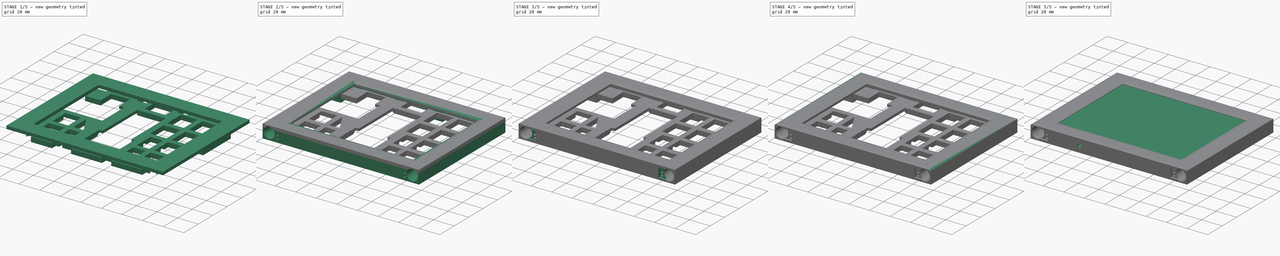
[diagram: build sequence overview — one tinted view per stage of 5, left to right]
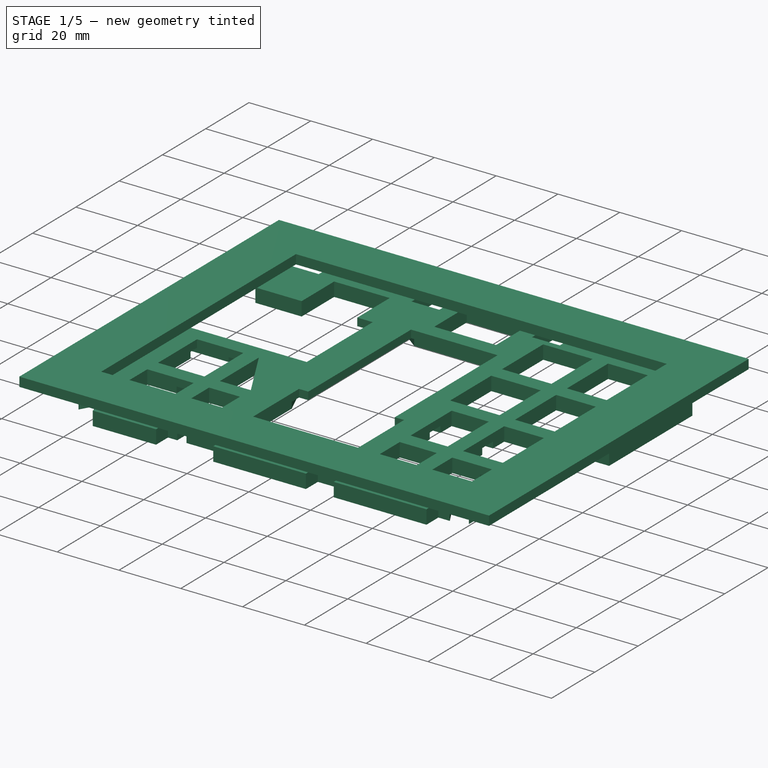
[diagram: stage 1 of 5 — iso view after this stage's code; geometry added in this stage tinted green]
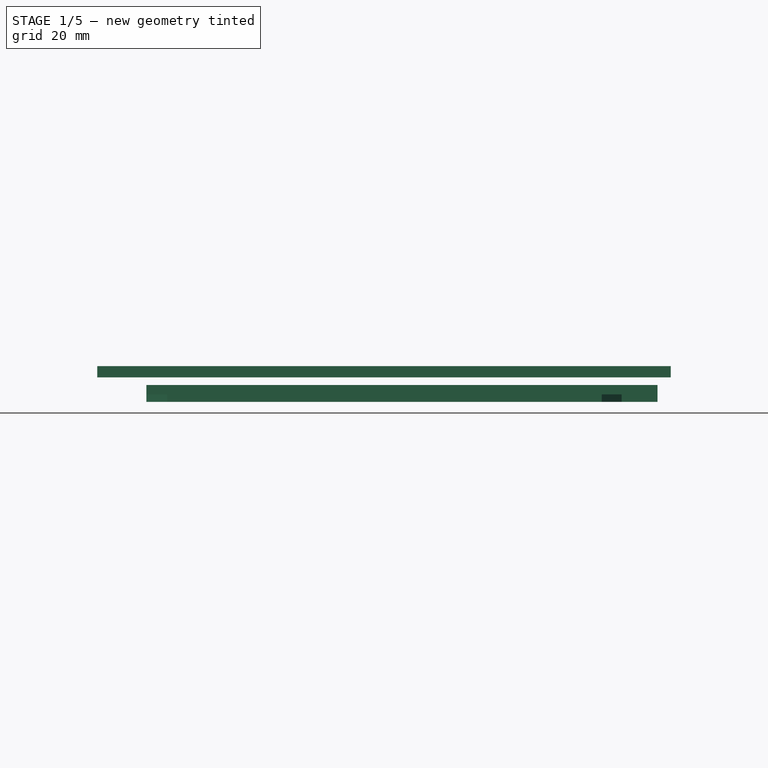
[diagram: stage 1 of 5 — front view after this stage's code; geometry added in this stage tinted green]
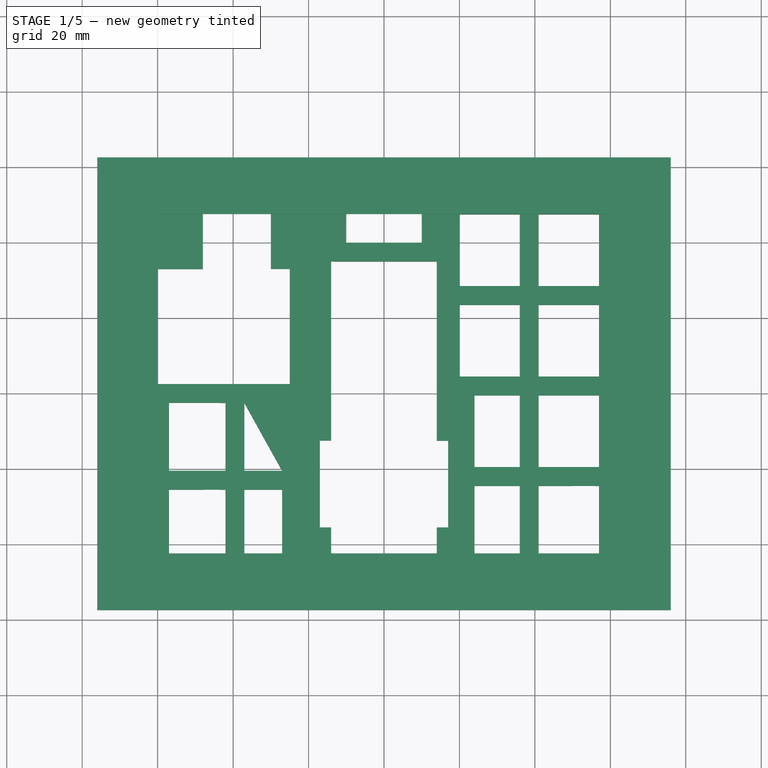
[diagram: stage 1 of 5 — top view after this stage's code; geometry added in this stage tinted green]
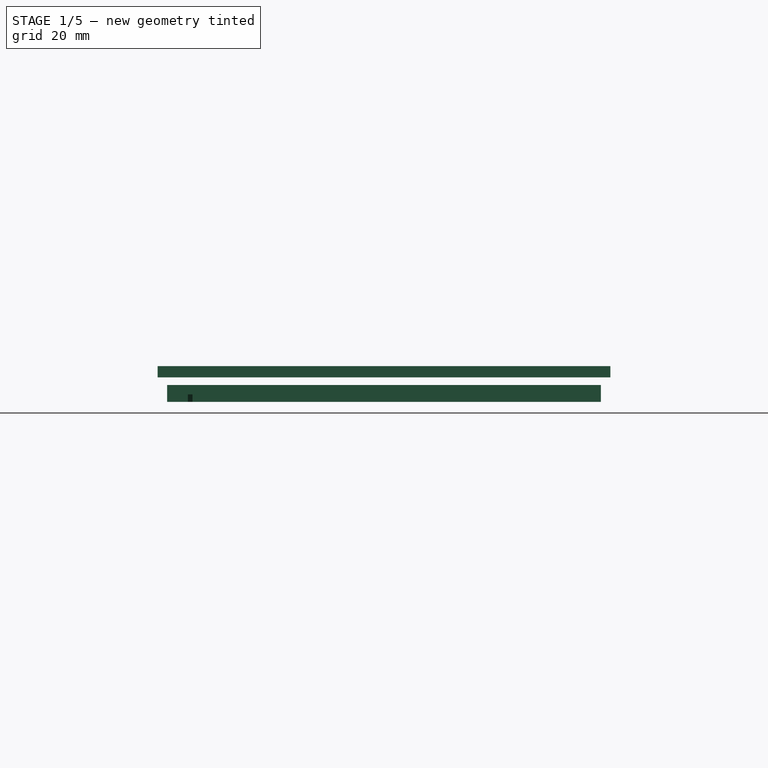
[diagram: stage 1 of 5 — right view after this stage's code; geometry added in this stage tinted green]
FCSTD DOCUMENT  (FreeCAD 0.20R)
Label: simpleThing3
License: All rights reserved
LicenseURL: http://en.wikipedia.org/wiki/All_rights_reserved
objects: Sketcher::SketchObject×19, PartDesign::Pocket×14, PartDesign::Pad×5, PartDesign::Chamfer×5, PartDesign::Body×4
note: 71 computed .brp shape members not serialized (recipe doc carries the construction recipe); baked Part::Feature solids carry a one-line shape summary decoded from their .brp

FEATURE [PartDesign::Body] Body  label="Screen"
  Group = -> [Pad,Sketch001,Pocket]
  Origin = -> Origin
  Placement = pos=(0,0,-1.5) rot=(0,0,1;0rad)
  Tip = -> Pocket
FEATURE [Sketcher::SketchObject] Sketch002  label="SketchFrameBaseFront"
  FullyConstrained = true
  MapMode = 5
  Support = -> [XY_Plane004]
  sketch-geometry (8):
    g0: LineSegment StartX=-60 StartY=47.5 StartZ=0 EndX=60 EndY=47.5 EndZ=0
    g1: LineSegment StartX=60 StartY=47.5 StartZ=0 EndX=60 EndY=-42.5 EndZ=0
    g2: LineSegment StartX=60 StartY=-42.5 StartZ=0 EndX=-60 EndY=-42.5 EndZ=0
    g3: LineSegment StartX=-60 StartY=-42.5 StartZ=0 EndX=-60 EndY=47.5 EndZ=0
    g4: LineSegment StartX=-76 StartY=62.5 StartZ=0 EndX=76 EndY=62.5 EndZ=0
    g5: LineSegment StartX=76 StartY=62.5 StartZ=0 EndX=76 EndY=-57.5 EndZ=0
    g6: LineSegment StartX=76 StartY=-57.5 StartZ=0 EndX=-76 EndY=-57.5 EndZ=0
    g7: LineSegment StartX=-76 StartY=-57.5 StartZ=0 EndX=-76 EndY=62.5 EndZ=0
  constraints (23):
    c: Coincident(g0,g1)
    c: Coincident(g1,g2)
    c: Coincident(g2,g3)
    c: Coincident(g3,g0)
    c: Horizontal(g0)
    c: Vertical(g3)
    c: DistanceX(g2,g2) = 120
    c: Symmetric(g2,g1,g-2)
    c: DistanceY(g1,g1) = 90
    c: Vertical(g1)
    c: DistanceY(g-1,g0) = 47.5
    c: Coincident(g4,g5)
    c: Coincident(g5,g6)
    c: Coincident(g6,g7)
    c: Coincident(g7,g4)
    c: Horizontal(g4)
    c: Horizontal(g6)
    c: Vertical(g5)
    c: Vertical(g7)
    c: DistanceY(g0,g4) = 15
    c: DistanceX(g6,g2) = 16
    c: DistanceX(g1,g5) = 16
    c: DistanceY(g5,g1) = 15
FEATURE [PartDesign::Pad] Pad001  label="FrameBaseFront"
  Direction = (0,0,1)
  Length = 3
  Length2 = 100
  Profile = -> Sketch002
  Type = 0
FEATURE [Sketcher::SketchObject] Sketch007
  FullyConstrained = true
  MapMode = 5
  Placement = pos=(0,0,-6.5) rot=(1,0,0;3.14159rad)
  sketch-geometry (58):
    g0: LineSegment StartX=-63 StartY=55 StartZ=0 EndX=72.5 EndY=55 EndZ=0
    g1: LineSegment StartX=72.5 StartY=-60 StartZ=0 EndX=-63 EndY=-60 EndZ=0
    g2: LineSegment StartX=72.5 StartY=55 StartZ=0 EndX=72.5 EndY=-60 EndZ=0
    g3: LineSegment StartX=-63 StartY=55 StartZ=0 EndX=-63 EndY=-60 EndZ=0
    g4: LineSegment StartX=-63 StartY=49.5 StartZ=0 EndX=63 EndY=49.5 EndZ=0
    g5: LineSegment StartX=63 StartY=49.5 StartZ=0 EndX=63 EndY=-49.5 EndZ=0
    g6: LineSegment StartX=63 StartY=-49.5 StartZ=0 EndX=-63 EndY=-49.5 EndZ=0
    g7: LineSegment StartX=-63 StartY=-49.5 StartZ=0 EndX=-63 EndY=-33 EndZ=0
    g8: LineSegment StartX=-25 StartY=-2.5 StartZ=0 EndX=-63 EndY=-2.5 EndZ=0
    g9: LineSegment StartX=-63 StartY=-2.5 StartZ=0 EndX=-63 EndY=49.5 EndZ=0
    g10: LineSegment StartX=-63 StartY=49.5 StartZ=0 EndX=-54 EndY=49.5 EndZ=0
    g11: LineSegment StartX=-54 StartY=49.5 StartZ=0 EndX=-54 EndY=55 EndZ=0
    g12: LineSegment StartX=15 StartY=55 StartZ=0 EndX=15 EndY=49.5 EndZ=0
    g13: LineSegment StartX=15 StartY=49.5 StartZ=0 EndX=24 EndY=49.5 EndZ=0
    g14: LineSegment StartX=24 StartY=49.5 StartZ=0 EndX=24 EndY=55 EndZ=0
    g15: LineSegment StartX=-24 StartY=55 StartZ=0 EndX=-24 EndY=49.5 EndZ=0
    g16: LineSegment StartX=-24 StartY=49.5 StartZ=0 EndX=-15 EndY=49.5 EndZ=0
    g17: LineSegment StartX=-15 StartY=49.5 StartZ=0 EndX=-15 EndY=55 EndZ=0
    g18: LineSegment StartX=54 StartY=55 StartZ=0 EndX=54 EndY=49.5 EndZ=0
    g19: LineSegment StartX=54 StartY=49.5 StartZ=0 EndX=63 EndY=49.5 EndZ=0
    g20: LineSegment StartX=63 StartY=49.5 StartZ=0 EndX=63 EndY=-3 EndZ=0
    g21: LineSegment StartX=63 StartY=-3 StartZ=0 EndX=72.5 EndY=-3 EndZ=0
    g22: LineSegment StartX=72.5 StartY=-3 StartZ=0 EndX=72.5 EndY=-41.5 EndZ=0
    g23: LineSegment StartX=72.5 StartY=-41.5 StartZ=0 EndX=63 EndY=-41.5 EndZ=0
    g24: LineSegment StartX=63 StartY=-41.5 StartZ=0 EndX=63 EndY=-49.5 EndZ=0
    g25: LineSegment StartX=-15 StartY=-60 StartZ=0 EndX=-15 EndY=-49.5 EndZ=0
    g26: LineSegment StartX=-15 StartY=-49.5 StartZ=0 EndX=-24 EndY=-49.5 EndZ=0
    g27: LineSegment StartX=-24 StartY=-49.5 StartZ=0 EndX=-24 EndY=-60 EndZ=0
    g28: LineSegment StartX=24 StartY=-49.5 StartZ=0 EndX=15 EndY=-49.5 EndZ=0
    g29: LineSegment StartX=15 StartY=-49.5 StartZ=0 EndX=15 EndY=-60 EndZ=0
    g30: LineSegment StartX=54 StartY=-49.5 StartZ=0 EndX=63 EndY=-49.5 EndZ=0
    g31: LineSegment StartX=54 StartY=-49.5 StartZ=0 EndX=54 EndY=-60 EndZ=0
    g32: LineSegment StartX=-63 StartY=-49.5 StartZ=0 EndX=-54 EndY=-49.5 EndZ=0
    g33: LineSegment StartX=-54 StartY=-49.5 StartZ=0 EndX=-54 EndY=-60 EndZ=0
    g34: LineSegment StartX=-14 StartY=55 StartZ=0 EndX=-14 EndY=-35 EndZ=0
    g35: LineSegment StartX=14 StartY=-35 StartZ=0 EndX=14 EndY=55 EndZ=0
    g36: LineSegment StartX=-63 StartY=-33 StartZ=0 EndX=-48 EndY=-33 EndZ=0
    g37: LineSegment StartX=-48 StartY=-33 StartZ=0 EndX=-48 EndY=-48 EndZ=0
    g38: LineSegment StartX=-48 StartY=-48 StartZ=0 EndX=-30 EndY=-48 EndZ=0
    g39: LineSegment StartX=-14 StartY=-35 StartZ=0 EndX=14 EndY=-35 EndZ=0
    g40: LineSegment StartX=-25 StartY=-2.5 StartZ=0 EndX=-25 EndY=-33 EndZ=0
    g41: LineSegment StartX=-25 StartY=-33 StartZ=0 EndX=-30 EndY=-33 EndZ=0
    g42: LineSegment StartX=-30 StartY=-33 StartZ=0 EndX=-30 EndY=-48 EndZ=0
    g43: LineSegment StartX=-54 StartY=55 StartZ=0 EndX=-24 EndY=55 EndZ=0
    g44: LineSegment StartX=-15 StartY=55 StartZ=0 EndX=-14 EndY=55 EndZ=0
    g45: LineSegment StartX=14 StartY=55 StartZ=0 EndX=15 EndY=55 EndZ=0
    g46: LineSegment StartX=54 StartY=55 StartZ=0 EndX=24 EndY=55 EndZ=0
    g47: LineSegment StartX=-15 StartY=-60 StartZ=0 EndX=15 EndY=-60 EndZ=0
    g48: LineSegment StartX=54 StartY=-60 StartZ=0 EndX=24 EndY=-60 EndZ=0
    g49: LineSegment StartX=24 StartY=-49.5 StartZ=0 EndX=24 EndY=-60 EndZ=0
    g50: LineSegment StartX=-54 StartY=-60 StartZ=0 EndX=-24 EndY=-60 EndZ=0
    g51: LineSegment StartX=-14 StartY=55 StartZ=0 EndX=14 EndY=55 EndZ=0
    g52: LineSegment StartX=-14 StartY=47 StartZ=0 EndX=-14 EndY=-35 EndZ=0
    g53: LineSegment StartX=14 StartY=47 StartZ=0 EndX=14 EndY=-35 EndZ=0
    g54: LineSegment StartX=-14 StartY=47 StartZ=0 EndX=14 EndY=47 EndZ=0
    g55: LineSegment StartX=-14 StartY=47 StartZ=0 EndX=-11 EndY=50 EndZ=0
    g56: LineSegment StartX=-11 StartY=50 StartZ=0 EndX=11 EndY=50 EndZ=0
    g57: LineSegment StartX=11 StartY=50 StartZ=0 EndX=14 EndY=47 EndZ=0
  constraints (165):
    c: DistanceX(g0,g0) = 135.5
    c: DistanceY(g1,g0) = 115
    c: Coincident(g2,g0)
    c: Coincident(g2,g1)
    c: Vertical(g2)
    c: Coincident(g3,g1)
    c: Coincident(g3,g0)
    c: Coincident(g5,g6)
    c: Horizontal(g6)
    c: Horizontal(g8)
    c: Coincident(g8,g9)
    c: Coincident(g9,g4)
    c: Coincident(g9,g10)
    c: PointOnObject(g10,g4)
    c: Coincident(g10,g11)
    c: PointOnObject(g11,g0)
    c: PointOnObject(g12,g0)
    c: PointOnObject(g12,g4)
    c: Vertical(g12)
    c: Coincident(g12,g13)
    c: PointOnObject(g13,g4)
    c: Coincident(g13,g14)
    c: PointOnObject(g14,g0)
    c: PointOnObject(g15,g4)
    c: Vertical(g15)
    c: Coincident(g15,g16)
    c: PointOnObject(g16,g4)
    c: Horizontal(g16)
    c: Coincident(g16,g17)
    c: PointOnObject(g17,g0)
    c: PointOnObject(g18,g0)
    c: PointOnObject(g18,g4)
    c: Vertical(g18)
    c: Coincident(g18,g19)
    c: Coincident(g19,g4)
    c: Coincident(g19,g20)
    c: PointOnObject(g20,g5)
    c: Coincident(g20,g21)
    c: PointOnObject(g21,g2)
    c: Horizontal(g21)
    c: Coincident(g21,g22)
    c: PointOnObject(g22,g2)
    c: Coincident(g22,g23)
    c: Horizontal(g23)
    c: PointOnObject(g25,g1)
    c: PointOnObject(g25,g6)
    c: PointOnObject(g26,g6)
    c: PointOnObject(g27,g1)
    c: PointOnObject(g28,g6)
    c: PointOnObject(g28,g6)
    c: PointOnObject(g29,g1)
    c: PointOnObject(g31,g1)
    c: PointOnObject(g32,g6)
    c: PointOnObject(g33,g1)
    c: Vertical(g11)
    c: Vertical(g14)
    c: Vertical(g17)
    c: Equal(g10,g19)
    c: DistanceX(g8,g8) = 38
    c: PointOnObject(g34,g0)
    c: Vertical(g34)
    c: Vertical(g35)
    c: DistanceX(g35,g19) = 49
    c: Distance(g35) = 90
    c: Coincident(g7,g36)
    c: Horizontal(g36)
    c: Coincident(g36,g37)
    c: Vertical(g37)
    c: Coincident(g37,g38)
    c: Horizontal(g38)
    c: DistanceX(g36,g38) = 18
    c: DistanceY(g37,g37) = 15
    c: DistanceY(g7,g8) = 30.5
    c: Symmetric(g34,g35,g-2)
    c: Symmetric(g14,g15,g-2)
    c: Coincident(g39,g34)
    c: Coincident(g39,g35)
    c: Horizontal(g39)
    c: Coincident(g8,g40)
    c: Vertical(g40)
    c: Coincident(g40,g41)
    c: Horizontal(g41)
    c: Coincident(g41,g42)
    c: Vertical(g42)
    c: Coincident(g38,g42)
    c: DistanceX(g41,g41) = 5
    c: Equal(g42,g37)
    c: Coincident(g43,g11)
    c: Coincident(g43,g15)
    c: Coincident(g44,g17)
    c: Coincident(g44,g34)
    c: Horizontal(g44)
    c: Coincident(g45,g35)
    c: Coincident(g45,g12)
    c: Coincident(g46,g18)
    c: Coincident(g46,g14)
    c: PointOnObject(g48,g1)
    c: DistanceY(g-1,g0) = 55
    c: DistanceY(g1,g30) = 10.5
    c: Vertical(g9)
    c: Coincident(g29,g28)
    c: Coincident(g49,g28)
    c: Coincident(g47,g29)
    c: Coincident(g49,g48)
    c: Coincident(g31,g48)
    c: Coincident(g30,g24)
    c: Vertical(g24)
    c: Coincident(g23,g24)
    c: Coincident(g31,g30)
    c: PointOnObject(g30,g6)
    c: Vertical(g31)
    c: Horizontal(g48)
    c: Coincident(g50,g33)
    c: Coincident(g50,g27)
    c: Coincident(g32,g33)
    c: Coincident(g6,g7)
    c: Coincident(g7,g32)
    c: PointOnObject(g7,g3)
    c: Vertical(g33)
    c: Coincident(g26,g25)
    c: Coincident(g27,g26)
    c: Vertical(g27)
    c: Vertical(g25)
    c: Vertical(g29)
    c: Vertical(g49)
    c: Coincident(g19,g5)
    c: Vertical(g20)
    c: Coincident(g5,g24)
    c: Coincident(g47,g25)
    c: DistanceX(g9,g-1) = 63
    c: DistanceY(g-1,g9) = 49.5
    c: DistanceY(g8,g-1) = 2.5
    c: DistanceX(g7,g32) = 9
    c: DistanceX(g0,g-1) = 63
    c: DistanceX(g24,g1) = 9.5
    c: DistanceY(g24,g24) = 8
    c: DistanceX(g48,g48) = 30
    c: Equal(g26,g28)
    c: Equal(g47,g48)
    c: DistanceX(g16,g12) = 30
    c: Vertical(g7)
    c: DistanceX(g28,g28) = 9
    c: DistanceX(g9,g10) = 9
    c: DistanceX(g16,g16) = 9
    c: DistanceX(g50,g50) = 30
    c: Equal(g13,g16)
    c: Distance(g30) = 9
    c: Coincident(g51,g44)
    c: Coincident(g51,g45)
    c: PointOnObject(g52,g34)
    c: Coincident(g52,g39)
    c: PointOnObject(g53,g35)
    c: Coincident(g53,g39)
    c: Coincident(g54,g52)
    c: Coincident(g54,g53)
    c: Horizontal(g54)
    c: DistanceY(g52,g44) = 8
    c: Coincident(g52,g55)
    c: Coincident(g55,g56)
    c: Coincident(g56,g57)
    c: Coincident(g57,g53)
    c: Symmetric(g55,g56,g-2)
    c: DistanceX(g56,g56) = 22
    c: DistanceY(g55,g44) = 5
    c: DistanceY(g20) = -3
FEATURE [PartDesign::Pad] Pad003  label="FillWithCutoutsForESP32AndScreenCable"
  Direction = (0,0,-1)
  Length = 4.5
  Length2 = 100
  Placement = pos=(0,0,-6.5) rot=(1,0,0;3.14159rad)
  Profile = -> Sketch007
  Reversed = true
  Type = 0
FEATURE [PartDesign::Pocket] Pocket011  label="DepressionsForWires"
  BaseFeature = -> Pad003
  Direction = (0,-1e-16,1)
  Length = 2
  Length2 = 100
  Placement = pos=(0,0,-6.5) rot=(1,0,0;3.14159rad)
  Profile = -> Sketch009
  Type = 0
FEATURE [Sketcher::SketchObject] Sketch010
  ExternalGeometry = -> [Sketch007]
  FullyConstrained = false
  MapMode = 5
  Placement = pos=(0,0,-6.5) rot=(1,0,0;3.14159rad)
  Support = -> [Pocket011]
  sketch-geometry (64):
    g0: LineSegment StartX=-57 StartY=43.5 StartZ=0 EndX=-42 EndY=43.5 EndZ=0
    g1: LineSegment StartX=-42 StartY=43.5 StartZ=0 EndX=-42 EndY=25.5 EndZ=0
    g2: LineSegment StartX=-42 StartY=25.5 StartZ=0 EndX=-57 EndY=25.5 EndZ=0
    g3: LineSegment StartX=-57 StartY=25.5 StartZ=0 EndX=-57 EndY=43.5 EndZ=0
    g4: LineSegment StartX=-57 StartY=20.5 StartZ=0 EndX=-42 EndY=20.5 EndZ=0
    g5: LineSegment StartX=-57 StartY=2.5 StartZ=0 EndX=-57 EndY=20.5 EndZ=0
    g6: LineSegment StartX=-42 StartY=2.5 StartZ=0 EndX=-57 EndY=2.5 EndZ=0
    g7: LineSegment StartX=-42 StartY=20.5 StartZ=0 EndX=-42 EndY=2.5 EndZ=0
    g8: LineSegment StartX=-37 StartY=43.5 StartZ=0 EndX=-27 EndY=43.5 EndZ=0
    g9: LineSegment StartX=-27 StartY=43.5 StartZ=0 EndX=-27 EndY=25.5 EndZ=0
    g10: LineSegment StartX=-27 StartY=25.5 StartZ=0 EndX=-37 EndY=25.5 EndZ=0
    g11: LineSegment StartX=-37 StartY=25.5 StartZ=0 EndX=-37 EndY=43.5 EndZ=0
    g12: LineSegment StartX=-37 StartY=20.5 StartZ=0 EndX=-37 EndY=2.5 EndZ=0
    g13: LineSegment StartX=-37 StartY=2.5 StartZ=0 EndX=-27 EndY=20.5 EndZ=0
    g14: LineSegment StartX=-27 StartY=20.5 StartZ=0 EndX=-37 EndY=20.5 EndZ=0
    g15: LineSegment StartX=24 StartY=43.5 StartZ=0 EndX=36 EndY=43.5 EndZ=0
    g16: LineSegment StartX=36 StartY=43.5 StartZ=0 EndX=36 EndY=24.5 EndZ=0
    g17: LineSegment StartX=36 StartY=24.5 StartZ=0 EndX=24 EndY=24.5 EndZ=0
    g18: LineSegment StartX=24 StartY=24.5 StartZ=0 EndX=24 EndY=43.5 EndZ=0
    g19: LineSegment StartX=24 StartY=19.5 StartZ=0 EndX=36 EndY=19.5 EndZ=0
    g20: LineSegment StartX=36 StartY=19.5 StartZ=0 EndX=36 EndY=0.5 EndZ=0
    g21: LineSegment StartX=36 StartY=0.5 StartZ=0 EndX=24 EndY=0.5 EndZ=0
    g22: LineSegment StartX=24 StartY=0.5 StartZ=0 EndX=24 EndY=19.5 EndZ=0
    g23: LineSegment StartX=20 StartY=-4.5 StartZ=0 EndX=36 EndY=-4.5 EndZ=0
    g24: LineSegment StartX=36 StartY=-4.5 StartZ=0 EndX=36 EndY=-23.5 EndZ=0
    g25: LineSegment StartX=36 StartY=-23.5 StartZ=0 EndX=20 EndY=-23.5 EndZ=0
    g26: LineSegment StartX=20 StartY=-23.5 StartZ=0 EndX=20 EndY=-4.5 EndZ=0
    g27: LineSegment StartX=20 StartY=-28.5 StartZ=0 EndX=36 EndY=-28.5 EndZ=0
    g28: LineSegment StartX=36 StartY=-28.5 StartZ=0 EndX=36 EndY=-47.5 EndZ=0
    g29: LineSegment StartX=36 StartY=-47.5 StartZ=0 EndX=20 EndY=-47.5 EndZ=0
    g30: LineSegment StartX=20 StartY=-47.5 StartZ=0 EndX=20 EndY=-28.5 EndZ=0
    g31: LineSegment StartX=41 StartY=43.5 StartZ=0 EndX=57 EndY=43.5 EndZ=0
    g32: LineSegment StartX=57 StartY=43.5 StartZ=0 EndX=57 EndY=24.5 EndZ=0
    g33: LineSegment StartX=57 StartY=24.5 StartZ=0 EndX=41 EndY=24.5 EndZ=0
    g34: LineSegment StartX=41 StartY=24.5 StartZ=0 EndX=41 EndY=43.5 EndZ=0
    g35: LineSegment StartX=41 StartY=19.5 StartZ=0 EndX=57 EndY=19.5 EndZ=0
    g36: LineSegment StartX=57 StartY=19.5 StartZ=0 EndX=57 EndY=0.5 EndZ=0
    g37: LineSegment StartX=57 StartY=0.5 StartZ=0 EndX=41 EndY=0.5 EndZ=0
    g38: LineSegment StartX=41 StartY=0.5 StartZ=0 EndX=41 EndY=19.5 EndZ=0
    g39: LineSegment StartX=41 StartY=-4.5 StartZ=0 EndX=57 EndY=-4.5 EndZ=0
    g40: LineSegment StartX=57 StartY=-4.5 StartZ=0 EndX=57 EndY=-23.5 EndZ=0
    g41: LineSegment StartX=57 StartY=-23.5 StartZ=0 EndX=41 EndY=-23.5 EndZ=0
    g42: LineSegment StartX=41 StartY=-23.5 StartZ=0 EndX=41 EndY=-4.5 EndZ=0
    g43: LineSegment StartX=41 StartY=-28.5 StartZ=0 EndX=57 EndY=-28.5 EndZ=0
    g44: LineSegment StartX=57 StartY=-28.5 StartZ=0 EndX=57 EndY=-47.5 EndZ=0
    g45: LineSegment StartX=57 StartY=-47.5 StartZ=0 EndX=41 EndY=-47.5 EndZ=0
    g46: LineSegment StartX=41 StartY=-47.5 StartZ=0 EndX=41 EndY=-28.5 EndZ=0
    g47: LineSegment StartX=-10 StartY=-55 StartZ=0 EndX=-10 EndY=-40 EndZ=0
    g48: LineSegment StartX=-10 StartY=-40 StartZ=0 EndX=10 EndY=-40 EndZ=0
    g49: LineSegment StartX=10 StartY=-40 StartZ=0 EndX=10 EndY=-55 EndZ=0
    g50: LineSegment StartX=10 StartY=-55 StartZ=0 EndX=-10 EndY=-55 EndZ=0
    g51: LineSegment StartX=62 StartY=-10.5 StartZ=0 EndX=68 EndY=-10.5 EndZ=0
    g52: LineSegment StartX=68 StartY=-10.5 StartZ=0 EndX=68 EndY=-35.5 EndZ=0
    g53: LineSegment StartX=68 StartY=-35.5 StartZ=0 EndX=62 EndY=-35.5 EndZ=0
    g54: LineSegment StartX=62 StartY=-35.5 StartZ=0 EndX=62 EndY=-10.5 EndZ=0
    g55: LineSegment StartX=-17 StartY=35.5 StartZ=0 EndX=17 EndY=35.5 EndZ=0
    g56: LineSegment StartX=17 StartY=35.5 StartZ=0 EndX=17 EndY=12.5 EndZ=0
    g57: LineSegment StartX=17 StartY=12.5 StartZ=0 EndX=-17 EndY=12.5 EndZ=0
    g58: LineSegment StartX=-17 StartY=12.5 StartZ=0 EndX=-17 EndY=35.5 EndZ=0
    g59: LineSegment StartX=-17.5459 StartY=52.5 StartZ=0 EndX=17.5 EndY=52.5 EndZ=0
    g60: LineSegment StartX=-23.5 StartY=55 StartZ=0 EndX=-33.5 EndY=55 EndZ=0
    g61: LineSegment StartX=-33.5 StartY=55 StartZ=0 EndX=-33.5 EndY=49.5 EndZ=0
    g62: LineSegment StartX=-33.5 StartY=49.5 StartZ=0 EndX=-23.5 EndY=49.5 EndZ=0
    g63: LineSegment StartX=-23.5 StartY=49.5 StartZ=0 EndX=-23.5 EndY=55 EndZ=0
  constraints (190):
    c: Coincident(g0,g1)
    c: Coincident(g1,g2)
    c: Coincident(g2,g3)
    c: Coincident(g3,g0)
    c: Horizontal(g0)
    c: Horizontal(g2)
    c: Vertical(g1)
    c: Vertical(g3)
    c: DistanceX(g2,g2) = 15
    c: DistanceY(g3,g3) = 18
    c: Coincident(g4,g7)
    c: Coincident(g7,g6)
    c: Coincident(g6,g5)
    c: Coincident(g5,g4)
    c: Horizontal(g4)
    c: Horizontal(g6)
    c: Vertical(g7)
    c: Vertical(g5)
    c: Equal(g2,g6) = 15
    c: Equal(g3,g5) = 20
    c: Coincident(g8,g9)
    c: Coincident(g9,g10)
    c: Coincident(g10,g11)
    c: Coincident(g11,g8)
    c: Horizontal(g8)
    c: Horizontal(g10)
    c: Vertical(g9)
    c: Vertical(g11)
    c: Equal(g3,g11) = 20
    c: DistanceY(g4,g1) = 5
    c: DistanceX(g1,g10) = 5
    c: DistanceY(g10,g1) = 0
    c: DistanceX(g4,g1) = 0
    c: Vertical(g12)
    c: Coincident(g12,g13)
    c: Coincident(g13,g14)
    c: Coincident(g14,g12)
    c: Horizontal(g14)
    c: DistanceX(g10,g12) = 0
    c: DistanceY(g12,g4) = 0
    c: Equal(g14,g10)
    c: Equal(g12,g7)
    c: DistanceY(g-3,g5) = 5
    c: DistanceX(g-3,g5) = 6
    c: Coincident(g15,g16)
    c: Coincident(g16,g17)
    c: Coincident(g17,g18)
    c: Horizontal(g17)
    c: Vertical(g16)
    c: Vertical(g18)
    c: DistanceY(g18,g18) = 19
    c: DistanceY(g8,g15) = 0
    c: Coincident(g19,g20)
    c: Coincident(g20,g21)
    c: Coincident(g21,g22)
    c: Coincident(g22,g19)
    c: Horizontal(g19)
    c: Horizontal(g21)
    c: Vertical(g20)
    c: Vertical(g22)
    c: Equal(g18,g22) = 20
    c: DistanceY(g19,g17) = 5
    c: DistanceX(g17,g19) = 0
    c: Coincident(g23,g24)
    c: Coincident(g24,g25)
    c: Coincident(g25,g26)
    c: Coincident(g26,g23)
    c: Horizontal(g23)
    c: Horizontal(g25)
    c: Vertical(g24)
    c: Vertical(g26)
    c: Equal(g18,g26) = 20
    c: Coincident(g27,g28)
    c: Coincident(g28,g29)
    c: Coincident(g29,g30)
    c: Coincident(g30,g27)
    c: Horizontal(g27)
    c: Horizontal(g29)
    c: Vertical(g28)
    c: Vertical(g30)
    c: Equal(g23,g27) = 15
    c: Equal(g26,g30) = 20
    c: DistanceY(g27,g25) = 5
    c: DistanceX(g25,g27) = 0
    c: DistanceY(g23,g21) = 5
    c: Coincident(g31,g32)
    c: Coincident(g32,g33)
    c: Coincident(g33,g34)
    c: Coincident(g34,g31)
    c: Horizontal(g31)
    c: Horizontal(g33)
    c: Vertical(g32)
    c: Vertical(g34)
    c: Equal(g18,g34) = 19
    c: Coincident(g35,g36)
    c: Coincident(g36,g37)
    c: Coincident(g37,g38)
    c: Coincident(g38,g35)
    c: Horizontal(g35)
    c: Horizontal(g37)
    c: Vertical(g36)
    c: Vertical(g38)
    c: Equal(g31,g35) = 15
    c: Equal(g34,g38) = 20
    c: DistanceY(g35,g33) = 5
    c: DistanceX(g33,g35) = 0
    c: Coincident(g39,g40)
    c: Coincident(g40,g41)
    c: Coincident(g41,g42)
    c: Coincident(g42,g39)
    c: Horizontal(g39)
    c: Horizontal(g41)
    c: Vertical(g40)
    c: Vertical(g42)
    c: Equal(g31,g39) = 15
    c: Equal(g34,g42) = 20
    c: Coincident(g43,g44)
    c: Coincident(g44,g45)
    c: Coincident(g45,g46)
    c: Coincident(g46,g43)
    c: Horizontal(g43)
    c: Horizontal(g45)
    c: Vertical(g44)
    c: Vertical(g46)
    c: Equal(g39,g43) = 15
    c: Equal(g42,g46) = 20
    c: DistanceY(g43,g41) = 5
    c: DistanceX(g41,g43) = 0
    c: DistanceY(g39,g37) = 5
    c: DistanceX(g39,g37) = 0
    c: DistanceY(g45,g28) = 0
    c: DistanceX(g28,g45) = 5
    c: Coincident(g48,g49)
    c: Coincident(g49,g50)
    c: Coincident(g50,g47)
    c: Coincident(g47,g48)
    c: Horizontal(g48)
    c: Horizontal(g50)
    c: Vertical(g49)
    c: Vertical(g47)
    c: DistanceX(g48,g48) = 20
    c: DistanceY(g49,g49) = 15
    c: DistanceX(g48,g-4) = 5
    c: DistanceY(g48,g-4) = 95
    c: Coincident(g51,g52)
    c: Coincident(g52,g53)
    c: Coincident(g53,g54)
    c: Coincident(g54,g51)
    c: Horizontal(g51)
    c: Horizontal(g53)
    c: Vertical(g52)
    c: Vertical(g54)
    c: DistanceY(g52,g52) = 25
    c: DistanceX(g51,g51) = 6
    c: DistanceX(g39,g51) = 5
    c: DistanceX(g-4,g29) = 5
    c: Coincident(g55,g56)
    c: Coincident(g56,g57)
    c: Coincident(g57,g58)
    c: Coincident(g58,g55)
    c: Horizontal(g57)
    c: Vertical(g56)
    c: Vertical(g58)
    c: Horizontal(g59)
    c: DistanceY(g15,g59) = 9
    c: DistanceY(g55,g59) = 17
    c: DistanceY(g57,g59) = 40
    c: DistanceX(g55,g55) = 34
    c: Symmetric(g55,g55,g-2)
    c: DistanceX(g31,g31) = 16
    c: DistanceX(g55,g17) = 7
    c: Equal(g23,g35)
    c: DistanceX(g20,g23) = 0
    c: Coincident(g15,g18)
    c: Horizontal(g15)
    c: Equal(g15,g19)
    c: DistanceY(g51,g39) = 6
    c: DistanceX(g8,g8) = 10
    c: Coincident(g60,g61)
    c: Coincident(g61,g62)
    c: Coincident(g62,g63)
    c: Coincident(g63,g60)
    c: Horizontal(g60)
    c: Horizontal(g62)
    c: Vertical(g61)
    c: Vertical(g63)
    c: DistanceY(g62) = 49.5
    c: DistanceY(g61,g61) = 5.5
    c: DistanceX(g62) = -23.5
    c: DistanceX(g62,g62) = 10
FEATURE [PartDesign::Pocket] Pocket012  label="HolesForMaterialSaving"
  BaseFeature = -> Pocket011
  Direction = (0,-2e-16,1)
  Length = 30
  Length2 = 100
  Midplane = true
  Placement = pos=(0,0,-6.5) rot=(1,0,0;3.14159rad)
  Profile = -> Sketch010
  Type = 0
FEATURE [PartDesign::Body] Pocket003Body  label="Frame"
  Group = -> [Sketch002,Pad001,Sketch003,Pad002,Sketch004,Pocket001,Chamfer,Sketch005,Pocket002,Sketch006,Pocket003,Sketch011,Pocket006,Sketch012,Pocket007,Sketch013,Pocket008,Sketch014,Pocket009,Sketch015,Pocket010,Chamfer001,Chamfer002,Sketch016,Pocket013,Sketch017,Pocket014,Sketch018,Pocket015,Chamfer005]
  Origin = -> Origin004
  Tip = -> Chamfer005
FEATURE [PartDesign::Chamfer] Chamfer006  label="ChamferScreenFlatCableOnFill"
  Angle = 45
  Base = -> Pocket012 [Edge136]
  BaseFeature = -> Pocket012
  ChamferType = 1
  FlipDirection = false
  Placement = pos=(0,0,-6.5) rot=(1,0,0;3.14159rad)
  Size = 3
  Size2 = 4
  SupportTransform = false
  UseAllEdges = false
FEATURE [PartDesign::Body] Body004  label="Fill"
  Group = -> [Sketch007,Pad003,Sketch009,Sketch010,Pocket011,Pocket012,Chamfer006]
  Origin = -> Origin006
  Tip = -> Chamfer006
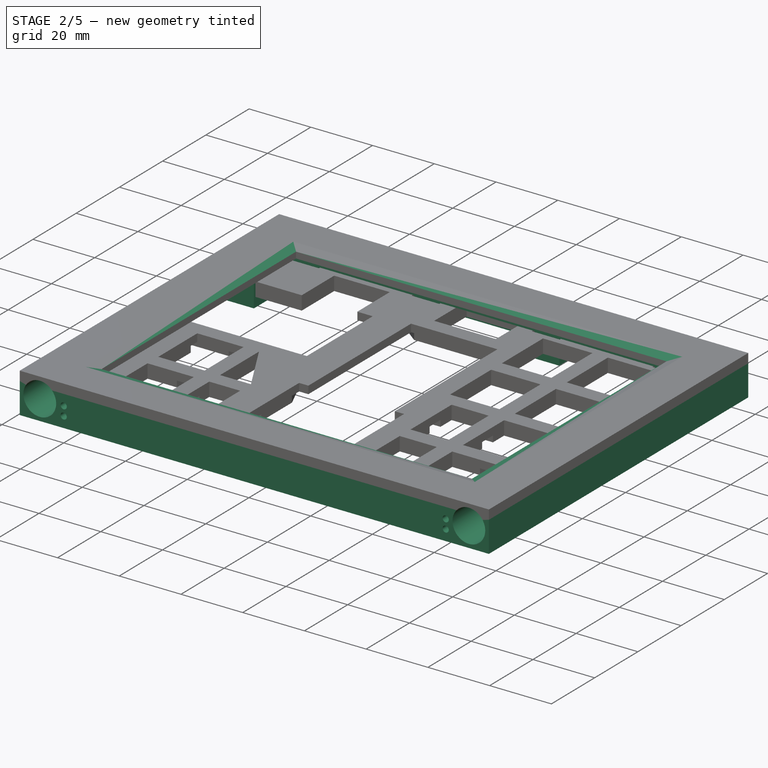
[diagram: stage 2 of 5 — iso view after this stage's code; geometry added in this stage tinted green]
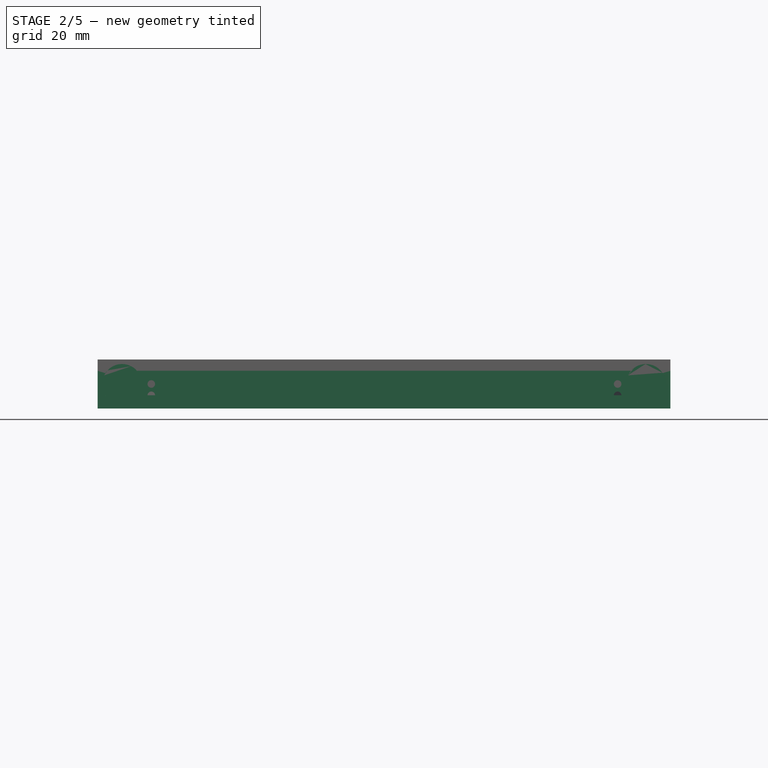
[diagram: stage 2 of 5 — front view after this stage's code; geometry added in this stage tinted green]
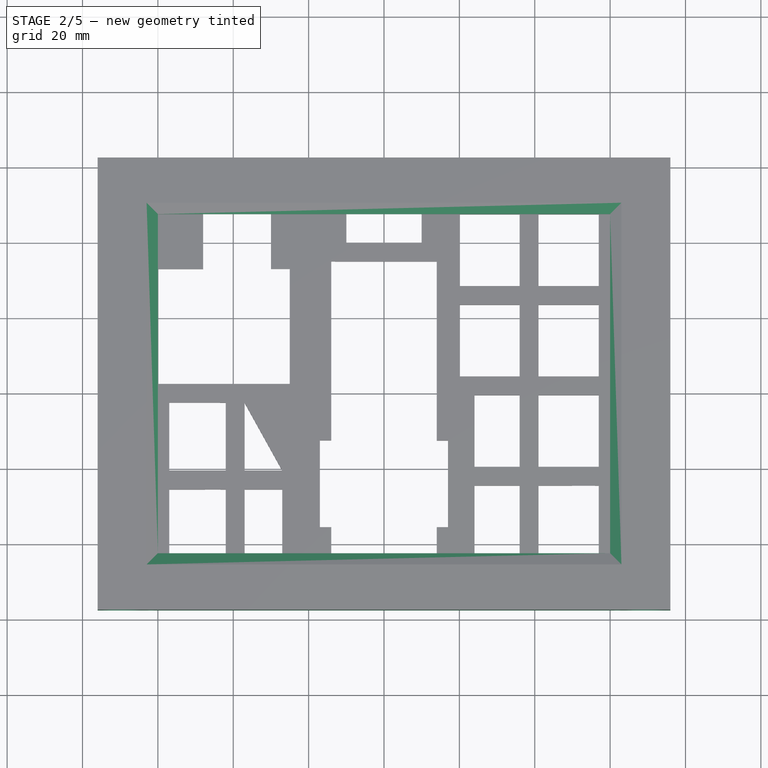
[diagram: stage 2 of 5 — top view after this stage's code; geometry added in this stage tinted green]
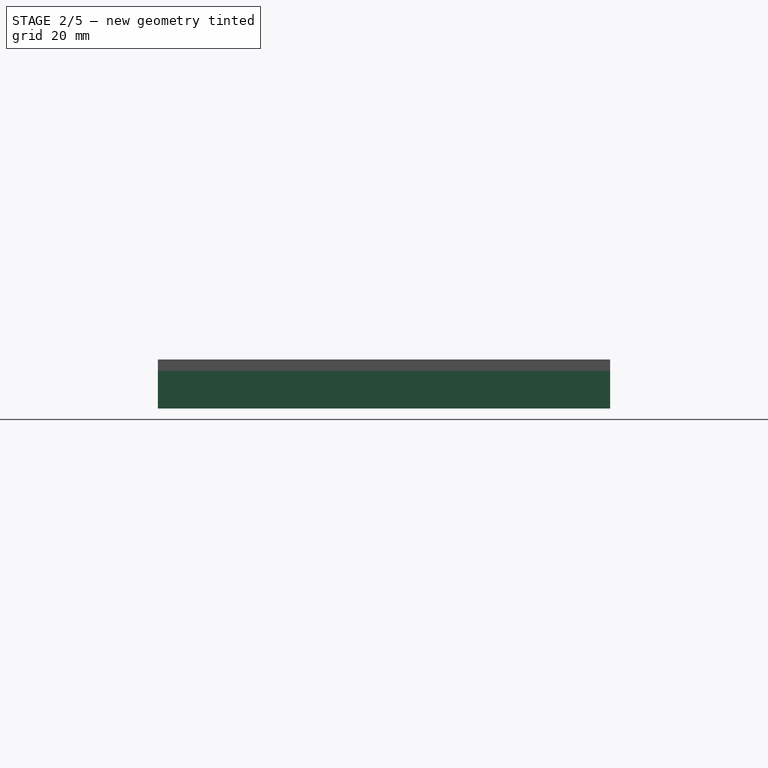
[diagram: stage 2 of 5 — right view after this stage's code; geometry added in this stage tinted green]
FEATURE [Sketcher::SketchObject] Sketch003  label="SketchFrameBaseBack"
  FullyConstrained = true
  MapMode = 5
  Placement = pos=(0,0,0) rot=(1,0,0;3.14159rad)
  Support = -> [Pad001]
  sketch-geometry (8):
    g0: LineSegment StartX=-76 StartY=57.5 StartZ=0 EndX=76 EndY=57.5 EndZ=0
    g1: LineSegment StartX=76 StartY=57.5 StartZ=0 EndX=76 EndY=-62.5 EndZ=0
    g2: LineSegment StartX=76 StartY=-62.5 StartZ=0 EndX=-76 EndY=-62.5 EndZ=0
    g3: LineSegment StartX=-76 StartY=-62.5 StartZ=0 EndX=-76 EndY=57.5 EndZ=0
    g4: LineSegment StartX=63.5 StartY=-50 StartZ=0 EndX=-63.5 EndY=-50 EndZ=0
    g5: LineSegment StartX=-63.5 StartY=-50 StartZ=0 EndX=-63.5 EndY=50 EndZ=0
    g6: LineSegment StartX=-63.5 StartY=50 StartZ=0 EndX=63.5 EndY=50 EndZ=0
    g7: LineSegment StartX=63.5 StartY=50 StartZ=0 EndX=63.5 EndY=-50 EndZ=0
  constraints (24):
    c: Coincident(g0,g1)
    c: Coincident(g1,g2)
    c: Coincident(g2,g3)
    c: Coincident(g3,g0)
    c: Horizontal(g0)
    c: Horizontal(g2)
    c: Vertical(g1)
    c: Vertical(g3)
    c: Coincident(g4,g5)
    c: Coincident(g5,g6)
    c: Coincident(g6,g7)
    c: Coincident(g7,g4)
    c: Horizontal(g4)
    c: Horizontal(g6)
    c: Vertical(g5)
    c: Vertical(g7)
    c: DistanceY(g3,g3) = 120
    c: DistanceY(g-1,g0) = 57.5
    c: DistanceX(g2,g2) = 152
    c: DistanceX(g2,g-1) = 76
    c: DistanceY(g5,g5) = 100
    c: DistanceY(g-1,g5) = 50
    c: DistanceX(g6,g6) = 127
    c: DistanceX(g5,g-1) = 63.5
FEATURE [PartDesign::Pad] Pad002  label="FrameBaseBack"
  BaseFeature = -> Pad001
  Direction = (0,0,-1)
  Length = 10
  Length2 = 100
  Profile = -> Sketch003
  ReferenceAxis = -> Sketch003 [N_Axis]
  Type = 0
FEATURE [Sketcher::SketchObject] Sketch004  label="SketchBatteryRight"
  FullyConstrained = true
  MapMode = 5
  Placement = pos=(0,-57.5,0) rot=(1,0,0;1.5708rad)
  Support = -> [Pad002]
  sketch-geometry (5):
    g0: Circle CenterX=69.5 CenterY=-3.5 CenterZ=0 NormalX=0 NormalY=0 NormalZ=1 AngleXU=0 Radius=5.3
    g1: LineSegment StartX=0 StartY=-3.5 StartZ=0 EndX=69.5 EndY=-3.5 EndZ=0
    g2: LineSegment StartX=0 StartY=3 StartZ=0 EndX=0 EndY=-10 EndZ=0
    g3: Circle CenterX=62 CenterY=-3.5 CenterZ=0 NormalX=0 NormalY=0 NormalZ=1 AngleXU=0 Radius=1
    g4: Circle CenterX=62 CenterY=-6.5 CenterZ=0 NormalX=0 NormalY=0 NormalZ=1 AngleXU=0 Radius=1
  constraints (15):
    c: Radius(g0) = 5.3
    c: PointOnObject(g1,g-2)
    c: Coincident(g1,g0)
    c: Horizontal(g1)
    c: PointOnObject(g2,g-2)
    c: DistanceY(g2,g2) = 13
    c: DistanceY(g-1,g2) = 3
    c: Symmetric(g2,g2,g1)
    c: Distance(g1) = 69.5
    c: PointOnObject(g3,g1)
    c: Radius(g3) = 1
    c: Radius(g4) = 1
    c: DistanceX(g4,g3) = 0
    c: DistanceX(g3,g0) = 7.5
    c: DistanceY(g4,g3) = 3
FEATURE [PartDesign::Pocket] Pocket001  label="BatteryRight"
  BaseFeature = -> Pad002
  Direction = (0,1,-2e-16)
  Length = 55
  Length2 = 100
  Profile = -> Sketch004
  Type = 0
FEATURE [PartDesign::Chamfer] Chamfer  label="ChamferFrontInside"
  Angle = 45
  Base = -> Pocket001 [Edge15,Edge17,Edge16,Edge18]
  BaseFeature = -> Pocket001
  ChamferType = 1
  FlipDirection = false
  Size = 3
  Size2 = 1
  SupportTransform = false
  UseAllEdges = false
FEATURE [Sketcher::SketchObject] Sketch005  label="SketchInsets"
  ExternalGeometry = -> [Pocket001]
  FullyConstrained = false
  MapMode = 5
  Placement = pos=(0,0,-10) rot=(1,0,0;3.14159rad)
  Support = -> [Pocket001]
  sketch-geometry (44):
    g0: LineSegment StartX=-74 StartY=55.5 StartZ=0 EndX=73 EndY=55.5 EndZ=0
    g1: LineSegment StartX=73 StartY=-60.5 StartZ=0 EndX=-73.9554 EndY=-60.5 EndZ=0
    g2: LineSegment StartX=73 StartY=55.5 StartZ=0 EndX=73 EndY=-60.5 EndZ=0
    g3: LineSegment StartX=-74 StartY=55.5 StartZ=0 EndX=-73.9554 EndY=-60.5 EndZ=0
    g4: LineSegment StartX=-63.5 StartY=50 StartZ=0 EndX=63.5 EndY=50 EndZ=0
    g5: LineSegment StartX=63.5 StartY=50 StartZ=0 EndX=63.5 EndY=-50 EndZ=0
    g6: LineSegment StartX=63.5 StartY=-50 StartZ=0 EndX=-63.5 EndY=-50 EndZ=0
    g7: LineSegment StartX=-63.5 StartY=-50 StartZ=0 EndX=-63.5 EndY=50 EndZ=0
    g8: LineSegment StartX=-63.5 StartY=-33 StartZ=0 EndX=-73.966 EndY=-33 EndZ=0
    g9: LineSegment StartX=-73.966 StartY=-33 StartZ=0 EndX=-73.9777 EndY=-2.5 EndZ=0
    g10: LineSegment StartX=-73.9777 StartY=-2.5 StartZ=0 EndX=-63.5 EndY=-2.5 EndZ=0
    g11: LineSegment StartX=-63.5 StartY=-2.5 StartZ=0 EndX=-63.5 EndY=50 EndZ=0
    g12: LineSegment StartX=-63.5 StartY=50 StartZ=0 EndX=-54.5 EndY=50 EndZ=0
    g13: LineSegment StartX=-54.5 StartY=50 StartZ=0 EndX=-54.5 EndY=55.5 EndZ=0
    g14: LineSegment StartX=-54.5 StartY=55.5 StartZ=0 EndX=-23.5 EndY=55.5 EndZ=0
    g15: LineSegment StartX=-23.5 StartY=55.5 StartZ=0 EndX=-23.5 EndY=50 EndZ=0
    g16: LineSegment StartX=-23.5 StartY=50 StartZ=0 EndX=-15.5 EndY=50 EndZ=0
    g17: LineSegment StartX=-15.5 StartY=50 StartZ=0 EndX=-15.5 EndY=55.5 EndZ=0
    g18: LineSegment StartX=-15.5 StartY=55.5 StartZ=0 EndX=15.5 EndY=55.5 EndZ=0
    g19: LineSegment StartX=15.5 StartY=55.5 StartZ=0 EndX=15.5 EndY=50 EndZ=0
    g20: LineSegment StartX=15.5 StartY=50 StartZ=0 EndX=23.5 EndY=50 EndZ=0
    g21: LineSegment StartX=23.5 StartY=50 StartZ=0 EndX=23.5 EndY=55.5 EndZ=0
    g22: LineSegment StartX=23.5 StartY=55.5 StartZ=0 EndX=54.5 EndY=55.5 EndZ=0
    g23: LineSegment StartX=54.5 StartY=55.5 StartZ=0 EndX=54.5 EndY=50 EndZ=0
    g24: LineSegment StartX=54.5 StartY=50 StartZ=0 EndX=63.5 EndY=50 EndZ=0
    g25: LineSegment StartX=63.5 StartY=50 StartZ=0 EndX=63.5 EndY=-2.5 EndZ=0
    g26: LineSegment StartX=63.5 StartY=-2.5 StartZ=0 EndX=73 EndY=-2.5 EndZ=0
    g27: LineSegment StartX=73 StartY=-2.5 StartZ=0 EndX=73 EndY=-42 EndZ=0
    g28: LineSegment StartX=73 StartY=-42 StartZ=0 EndX=63.5 EndY=-42 EndZ=0
    g29: LineSegment StartX=63.5 StartY=-42 StartZ=0 EndX=63.5 EndY=-50 EndZ=0
    g30: LineSegment StartX=23.5 StartY=-60.5 StartZ=0 EndX=23.5 EndY=-50 EndZ=0
    g31: LineSegment StartX=23.5 StartY=-50 StartZ=0 EndX=15.5 EndY=-50 EndZ=0
    g32: LineSegment StartX=15.5 StartY=-50 StartZ=0 EndX=15.5 EndY=-60.5 EndZ=0
    g33: LineSegment StartX=15.5 StartY=-60.5 StartZ=0 EndX=-15.5 EndY=-60.5 EndZ=0
    g34: LineSegment StartX=-15.5 StartY=-60.5 StartZ=0 EndX=-15.5 EndY=-50 EndZ=0
    g35: LineSegment StartX=-15.5 StartY=-50 StartZ=0 EndX=-23.5 EndY=-50 EndZ=0
    g36: LineSegment StartX=-23.5 StartY=-50 StartZ=0 EndX=-23.5 EndY=-60.5 EndZ=0
    g37: LineSegment StartX=63.5 StartY=-50 StartZ=0 EndX=54.5 EndY=-50 EndZ=0
    g38: LineSegment StartX=54.5 StartY=-50 StartZ=0 EndX=54.5 EndY=-60.5 EndZ=0
    g39: LineSegment StartX=54.5 StartY=-60.5 StartZ=0 EndX=23.5 EndY=-60.5 EndZ=0
    g40: LineSegment StartX=-63.5 StartY=-50 StartZ=0 EndX=-54.5 EndY=-50 EndZ=0
    g41: LineSegment StartX=-54.5 StartY=-50 StartZ=0 EndX=-54.5 EndY=-60.5 EndZ=0
    g42: LineSegment StartX=-23.5 StartY=-60.5 StartZ=0 EndX=-54.5 EndY=-60.5 EndZ=0
    g43: LineSegment StartX=-63.5 StartY=-33 StartZ=0 EndX=-63.5 EndY=-50 EndZ=0
  constraints (129):
    c: Horizontal(g0)
    c: Horizontal(g1)
    c: DistanceX(g0,g0) = 147
    c: DistanceY(g1,g0) = 116
    c: DistanceY(g0,g-4) = 2
    c: DistanceX(g-4,g0) = 2
    c: Coincident(g2,g0)
    c: Coincident(g2,g1)
    c: Vertical(g2)
    c: Coincident(g3,g1)
    c: Coincident(g3,g0)
    c: Coincident(g4,g5)
    c: Coincident(g5,g6)
    c: Coincident(g6,g7)
    c: Coincident(g7,g4)
    c: Horizontal(g6)
    c: Vertical(g5)
    c: Vertical(g7)
    c: DistanceX(g4,g4) = 127
    c: DistanceY(g7,g7) = 100
    c: DistanceX(g-4,g4) = 12.5
    c: DistanceY(g4,g-4) = 7.5
    c: PointOnObject(g8,g7)
    c: PointOnObject(g8,g3)
    c: Horizontal(g8)
    c: Coincident(g8,g9)
    c: PointOnObject(g9,g3)
    c: Coincident(g9,g10)
    c: PointOnObject(g10,g7)
    c: Horizontal(g10)
    c: Coincident(g10,g11)
    c: Coincident(g11,g4)
    c: Coincident(g11,g12)
    c: PointOnObject(g12,g4)
    c: Coincident(g12,g13)
    c: PointOnObject(g13,g0)
    c: Coincident(g13,g14)
    c: PointOnObject(g14,g0)
    c: Coincident(g14,g15)
    c: PointOnObject(g15,g4)
    c: Vertical(g15)
    c: Coincident(g15,g16)
    c: PointOnObject(g16,g4)
    c: Coincident(g16,g17)
    c: PointOnObject(g17,g0)
    c: Coincident(g17,g18)
    c: PointOnObject(g18,g0)
    c: Coincident(g18,g19)
    c: PointOnObject(g19,g4)
    c: Vertical(g19)
    c: Coincident(g19,g20)
    c: PointOnObject(g20,g4)
    c: Horizontal(g20)
    c: Coincident(g20,g21)
    c: PointOnObject(g21,g0)
    c: Coincident(g21,g22)
    c: PointOnObject(g22,g0)
    c: Coincident(g22,g23)
    c: PointOnObject(g23,g4)
    c: Vertical(g23)
    c: Coincident(g23,g24)
    c: Coincident(g24,g4)
    c: Coincident(g24,g25)
    c: PointOnObject(g25,g5)
    c: Coincident(g25,g26)
    c: PointOnObject(g26,g2)
    c: Horizontal(g26)
    c: Coincident(g26,g27)
    c: PointOnObject(g27,g2)
    c: Coincident(g27,g28)
    c: PointOnObject(g28,g5)
    c: Horizontal(g28)
    c: Coincident(g28,g29)
    c: Vertical(g29)
    c: PointOnObject(g30,g1)
    c: PointOnObject(g30,g6)
    c: Coincident(g30,g31)
    c: PointOnObject(g31,g6)
    c: Coincident(g31,g32)
    c: PointOnObject(g32,g1)
    c: Vertical(g32)
    c: Coincident(g32,g33)
    c: Coincident(g33,g34)
    c: PointOnObject(g34,g6)
    c: Coincident(g34,g35)
    c: PointOnObject(g35,g6)
    c: Coincident(g35,g36)
    c: PointOnObject(g36,g1)
    c: Vertical(g36)
    c: PointOnObject(g29,g6)
    c: Coincident(g29,g37)
    c: PointOnObject(g37,g6)
    c: Coincident(g37,g38)
    c: PointOnObject(g38,g1)
    c: Vertical(g38)
    c: Coincident(g38,g39)
    c: Coincident(g39,g30)
    c: Vertical(g30)
    c: DistanceX(g31,g31) = 8
    c: Vertical(g34)
    c: PointOnObject(g40,g6)
    c: PointOnObject(g40,g6)
    c: Coincident(g41,g40)
    c: PointOnObject(g41,g1)
    c: Vertical(g41)
    c: Coincident(g42,g36)
    c: Coincident(g42,g41)
    c: Vertical(g13)
    c: Vertical(g17)
    c: Vertical(g21)
    c: DistanceY(g25,g-3) = 60
    c: Equal(g11,g25)
    c: Distance(g9) = 30.5
    c: Coincident(g8,g43)
    c: PointOnObject(g43,g7)
    c: Coincident(g43,g40)
    c: Equal(g35,g16)
    c: Equal(g16,g20)
    c: Equal(g20,g31)
    c: DistanceX(g34) = -15.5
    c: DistanceX(g31) = 15.5
    c: DistanceX(g16) = -15.5
    c: DistanceX(g19) = 15.5
    c: DistanceX(g23) = 54.5
    c: DistanceX(g12) = -54.5
    c: DistanceX(g40) = -54.5
    c: DistanceX(g37) = 54.5
    c: PointOnObject(g33,g1)
    c: DistanceY(g29,g29) = 8
FEATURE [PartDesign::Pocket] Pocket002  label="Insets"
  BaseFeature = -> Chamfer
  Direction = (0,0,1)
  Length = 8
  Length2 = 100
  Profile = -> Sketch005
  ReferenceAxis = -> Sketch005 [N_Axis]
  Type = 0
FEATURE [Sketcher::SketchObject] Sketch006  label="SketchBatteryLeft"
  FullyConstrained = true
  MapMode = 5
  Placement = pos=(0,-57.5,0) rot=(1,0,0;1.5708rad)
  Support = -> [Pocket002]
  sketch-geometry (5):
    g0: Circle CenterX=-69.5 CenterY=-3.5 CenterZ=0 NormalX=0 NormalY=0 NormalZ=1 AngleXU=0 Radius=5.3
    g1: LineSegment StartX=0 StartY=-3.5 StartZ=0 EndX=-69.5 EndY=-3.5 EndZ=0
    g2: LineSegment StartX=0 StartY=3 StartZ=0 EndX=0 EndY=-10 EndZ=0
    g3: Circle CenterX=-61.75 CenterY=-3.5 CenterZ=0 NormalX=0 NormalY=0 NormalZ=1 AngleXU=0 Radius=1
    g4: Circle CenterX=-61.75 CenterY=-6.5 CenterZ=0 NormalX=0 NormalY=0 NormalZ=1 AngleXU=0 Radius=1
  constraints (15):
    c: Radius(g0) = 5.3
    c: PointOnObject(g1,g-2)
    c: Coincident(g1,g0)
    c: Horizontal(g1)
    c: PointOnObject(g2,g-2)
    c: DistanceY(g2,g2) = 13
    c: DistanceY(g-1,g2) = 3
    c: Symmetric(g2,g2,g1)
    c: Distance(g1) = 69.5
    c: Radius(g3) = 1
    c: Radius(g4) = 1
    c: DistanceY(g4,g3) = 3
    c: DistanceX(g0,g3) = 7.75
    c: DistanceY(g0,g3) = 0
    c: DistanceX(g4,g3) = 0
FEATURE [PartDesign::Pocket] Pocket003  label="BatteryLeft"
  BaseFeature = -> Pocket002
  Direction = (0,1,-2e-16)
  Length = 55
  Length2 = 100
  Profile = -> Sketch006
  Type = 0
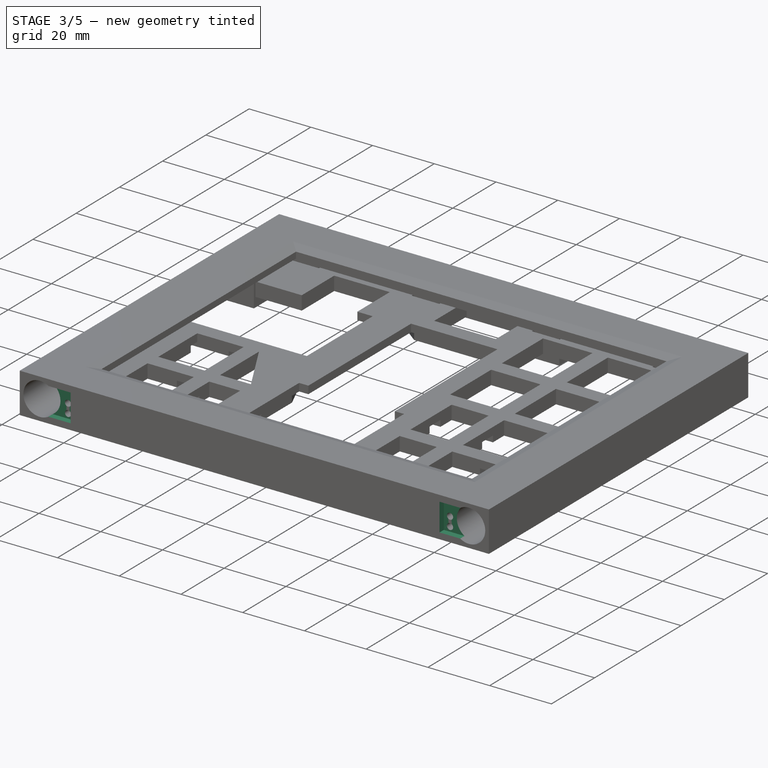
[diagram: stage 3 of 5 — iso view after this stage's code; geometry added in this stage tinted green]
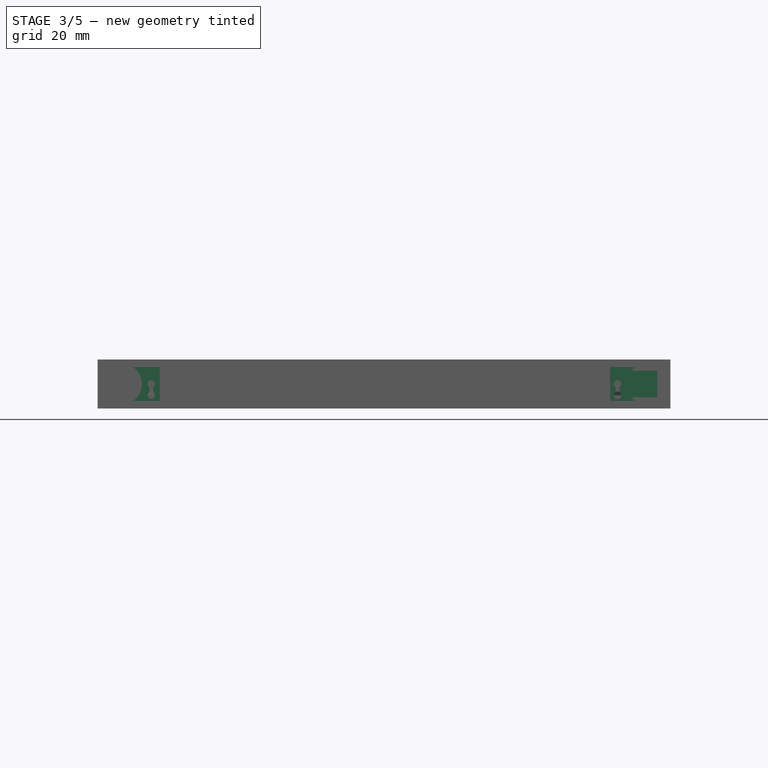
[diagram: stage 3 of 5 — front view after this stage's code; geometry added in this stage tinted green]
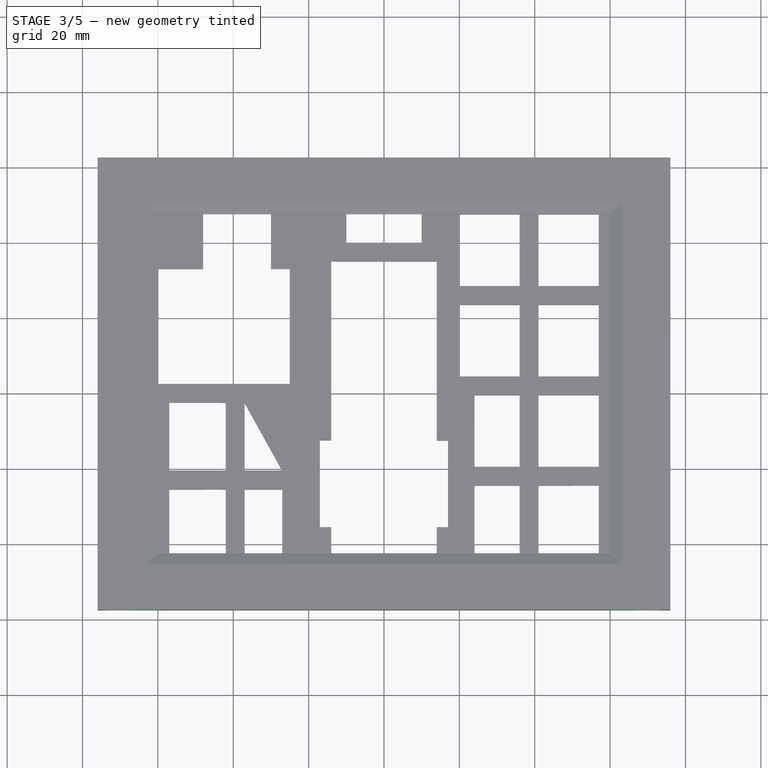
[diagram: stage 3 of 5 — top view after this stage's code; geometry added in this stage tinted green]
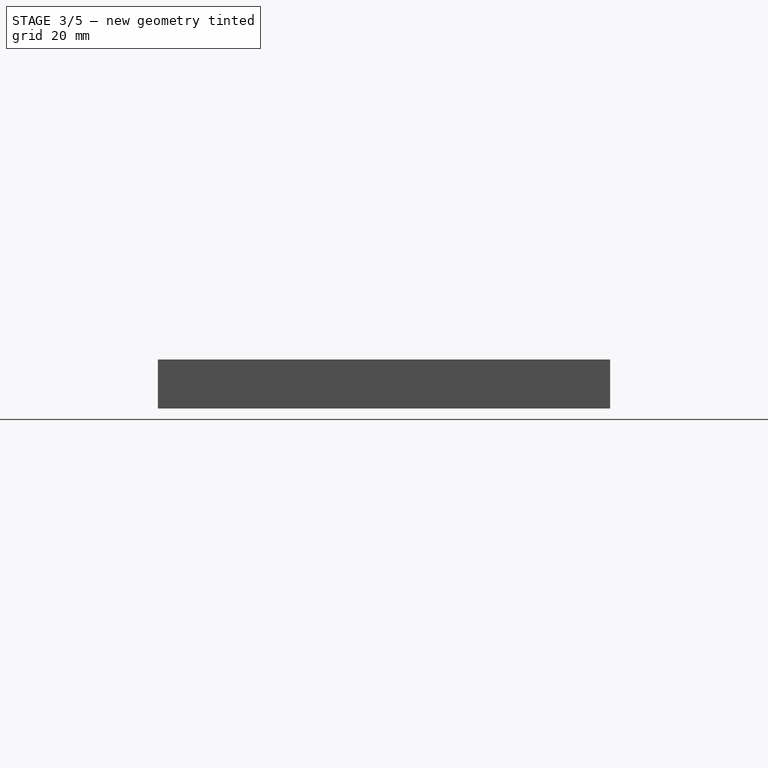
[diagram: stage 3 of 5 — right view after this stage's code; geometry added in this stage tinted green]
FEATURE [PartDesign::Body] Body003  label="Backplane"
  Group = -> [Sketch008,Pad004]
  Origin = -> Origin005
  Tip = -> Pad004
FEATURE [Sketcher::SketchObject] Sketch011  label="SketchBatteryLeftPlateInset"
  ExternalGeometry = -> [Pocket003]
  FullyConstrained = true
  MapMode = 5
  Placement = pos=(0,-57.5,0) rot=(1,0,0;1.5708rad)
  Support = -> [Pocket003]
  sketch-geometry (4):
    g0: LineSegment StartX=-59.5 StartY=1 StartZ=0 EndX=-69.5 EndY=1 EndZ=0
    g1: LineSegment StartX=-69.5 StartY=1 StartZ=0 EndX=-69.5 EndY=-8 EndZ=0
    g2: LineSegment StartX=-69.5 StartY=-8 StartZ=0 EndX=-59.5 EndY=-8 EndZ=0
    g3: LineSegment StartX=-59.5 StartY=-8 StartZ=0 EndX=-59.5 EndY=1 EndZ=0
  constraints (12):
    c: Coincident(g0,g1)
    c: Coincident(g1,g2)
    c: Coincident(g2,g3)
    c: Coincident(g3,g0)
    c: Horizontal(g0)
    c: Horizontal(g2)
    c: Vertical(g1)
    c: Vertical(g3)
    c: DistanceY(g3,g3) = 9
    c: DistanceX(g-3,g0) = 6.5
    c: DistanceX(g0,g0) = 10
    c: DistanceY(g-1,g0) = 1
FEATURE [PartDesign::Pocket] Pocket006  label="BatteryLeftPlateInset"
  BaseFeature = -> Pocket003
  Direction = (0,1,-2e-16)
  Length = 2
  Length2 = 100
  Profile = -> Sketch011
  Type = 0
FEATURE [Sketcher::SketchObject] Sketch012  label="SketchBatteryRightPlateInset"
  ExternalGeometry = -> [Pocket006]
  FullyConstrained = true
  MapMode = 5
  Placement = pos=(0,-57.5,0) rot=(1,0,0;1.5708rad)
  Support = -> [Pocket006]
  sketch-geometry (4):
    g0: LineSegment StartX=60 StartY=1 StartZ=0 EndX=70 EndY=1 EndZ=0
    g1: LineSegment StartX=70 StartY=1 StartZ=0 EndX=70 EndY=-8 EndZ=0
    g2: LineSegment StartX=70 StartY=-8 StartZ=0 EndX=60 EndY=-8 EndZ=0
    g3: LineSegment StartX=60 StartY=-8 StartZ=0 EndX=60 EndY=1 EndZ=0
  constraints (12):
    c: Coincident(g0,g1)
    c: Coincident(g1,g2)
    c: Coincident(g2,g3)
    c: Coincident(g3,g0)
    c: Horizontal(g0)
    c: Horizontal(g2)
    c: Vertical(g1)
    c: Vertical(g3)
    c: DistanceX(g0,g-3) = 6
    c: DistanceX(g0,g0) = 10
    c: DistanceY(g3,g3) = 9
    c: DistanceY(g-1,g0) = 1
FEATURE [PartDesign::Pocket] Pocket007  label="BatteryRightPlateInset"
  BaseFeature = -> Pocket006
  Direction = (0,1,-2e-16)
  Length = 2
  Length2 = 100
  Profile = -> Sketch012
  Type = 0
FEATURE [Sketcher::SketchObject] Sketch013  label="SketchMagnetInsetsBig"
  ExternalGeometry = -> [Pocket007]
  FullyConstrained = true
  MapMode = 5
  Placement = pos=(0,0,-10) rot=(1,0,0;3.14159rad)
  Support = -> [Pocket007]
  sketch-geometry (8):
    g0: LineSegment StartX=-73.5 StartY=-44.5 StartZ=0 EndX=-65.5 EndY=-44.5 EndZ=0
    g1: LineSegment StartX=-65.5 StartY=-44.5 StartZ=0 EndX=-65.5 EndY=-59.5 EndZ=0
    g2: LineSegment StartX=-65.5 StartY=-59.5 StartZ=0 EndX=-73.5 EndY=-59.5 EndZ=0
    g3: LineSegment StartX=-73.5 StartY=-59.5 StartZ=0 EndX=-73.5 EndY=-44.5 EndZ=0
    g4: LineSegment StartX=65.5 StartY=-47.5 StartZ=0 EndX=73.5 EndY=-47.5 EndZ=0
    g5: LineSegment StartX=73.5 StartY=-47.5 StartZ=0 EndX=73.5 EndY=-59.5 EndZ=0
    g6: LineSegment StartX=73.5 StartY=-59.5 StartZ=0 EndX=65.5 EndY=-59.5 EndZ=0
    g7: LineSegment StartX=65.5 StartY=-59.5 StartZ=0 EndX=65.5 EndY=-47.5 EndZ=0
  constraints (24):
    c: Coincident(g0,g1)
    c: Coincident(g1,g2)
    c: Coincident(g2,g3)
    c: Coincident(g3,g0)
    c: Horizontal(g0)
    c: Horizontal(g2)
    c: Vertical(g1)
    c: Vertical(g3)
    c: Coincident(g4,g5)
    c: Coincident(g5,g6)
    c: Coincident(g6,g7)
    c: Coincident(g7,g4)
    c: Horizontal(g4)
    c: Horizontal(g6)
    c: Vertical(g5)
    c: Vertical(g7)
    c: DistanceY(g3,g3) = 15
    c: DistanceX(g2,g2) = 8
    c: DistanceY(g-3,g2) = 3
    c: DistanceX(g-3,g2) = 2.5
    c: DistanceY(g5,g5) = 12
    c: DistanceX(g6,g6) = 8
    c: DistanceX(g5,g-3) = 2.5
    c: DistanceY(g-3,g5) = 3
FEATURE [PartDesign::Pocket] Pocket008  label="MagnetInsetsBig"
  BaseFeature = -> Pocket007
  Direction = (0,0,1)
  Length = 4
  Length2 = 100
  Profile = -> Sketch013
  ReferenceAxis = -> Sketch013 [N_Axis]
  Type = 0
FEATURE [Sketcher::SketchObject] Sketch014  label="SketchBatteryRightConnectionPlateHole"
  FullyConstrained = true
  MapMode = 5
  Placement = pos=(63.5,0,0) rot=(0.57735,-0.57735,-0.57735;2.0944rad)
  Support = -> [Pocket008]
  sketch-geometry (4):
    g0: LineSegment StartX=1.5 StartY=-7 StartZ=0 EndX=4.5 EndY=-7 EndZ=0
    g1: LineSegment StartX=4.5 StartY=-7 StartZ=0 EndX=4.5 EndY=0 EndZ=0
    g2: LineSegment StartX=4.5 StartY=0 StartZ=0 EndX=1.5 EndY=0 EndZ=0
    g3: LineSegment StartX=1.5 StartY=0 StartZ=0 EndX=1.5 EndY=-7 EndZ=0
  constraints (12):
    c: Coincident(g0,g1)
    c: Coincident(g1,g2)
    c: Coincident(g2,g3)
    c: Coincident(g3,g0)
    c: Horizontal(g0)
    c: Horizontal(g2)
    c: Vertical(g1)
    c: Vertical(g3)
    c: DistanceX(g0,g0) = 3
    c: DistanceY(g1,g1) = 7
    c: DistanceY(g-1,g1) = 0
    c: DistanceX(g-1,g2) = 1.5
FEATURE [PartDesign::Pocket] Pocket009  label="BatteryRightConnectionPlateHole"
  BaseFeature = -> Pocket008
  Direction = (1,0,0)
  Length = 18
  Length2 = 100
  Midplane = true
  Profile = -> Sketch014
  ReferenceAxis = -> Sketch014 [N_Axis]
  Type = 0
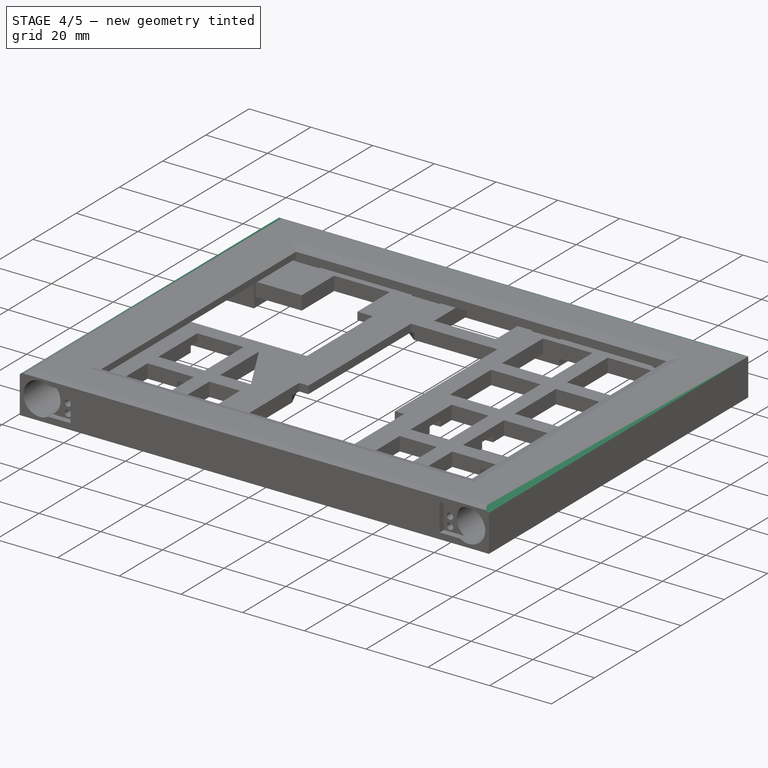
[diagram: stage 4 of 5 — iso view after this stage's code; geometry added in this stage tinted green]
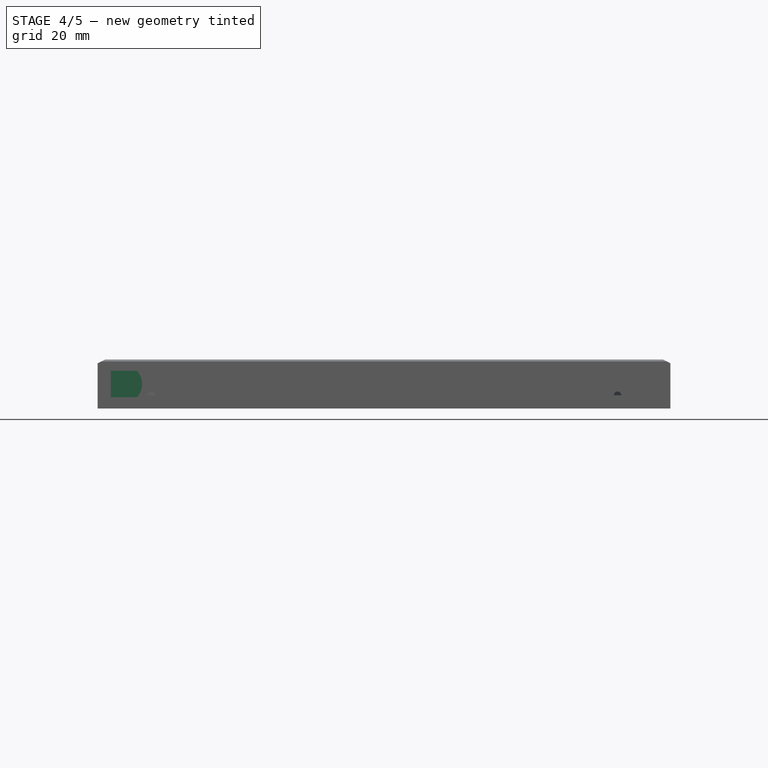
[diagram: stage 4 of 5 — front view after this stage's code; geometry added in this stage tinted green]
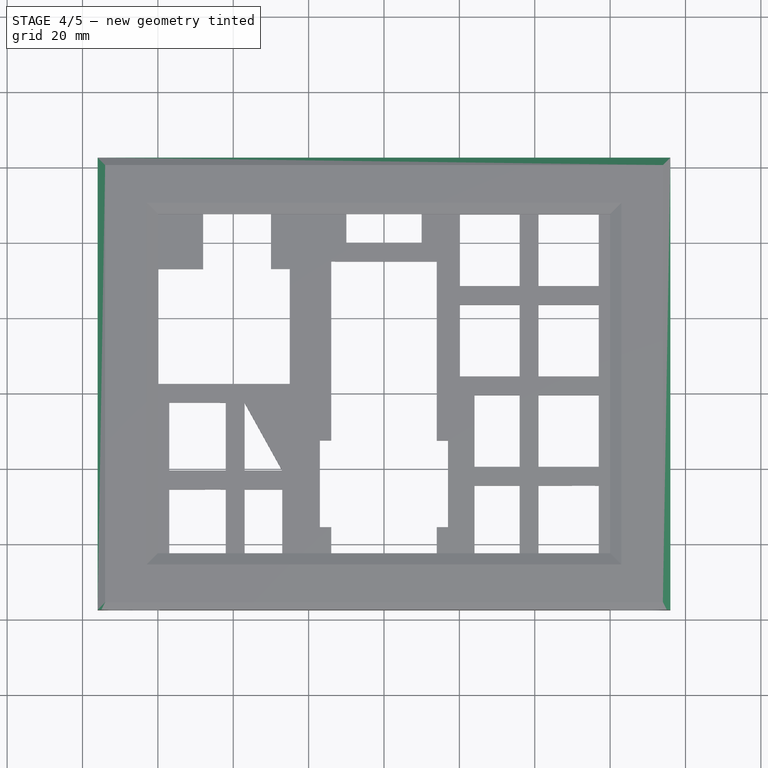
[diagram: stage 4 of 5 — top view after this stage's code; geometry added in this stage tinted green]
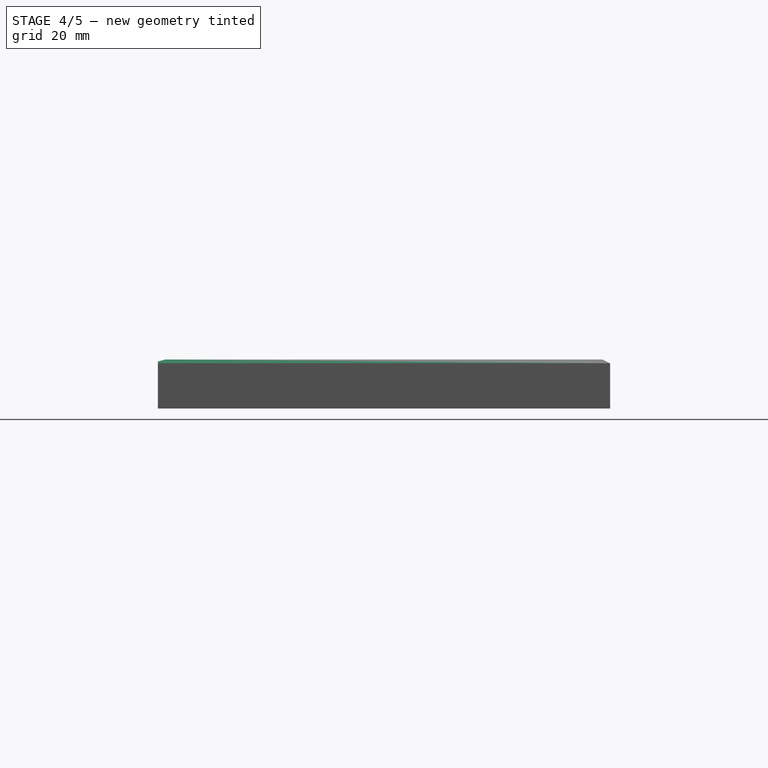
[diagram: stage 4 of 5 — right view after this stage's code; geometry added in this stage tinted green]
FEATURE [Sketcher::SketchObject] Sketch015  label="SketchBatteryLeftConnectionPlateHole"
  FullyConstrained = true
  MapMode = 5
  Placement = pos=(-63.5,0,0) rot=(0.57735,0.57735,0.57735;2.0944rad)
  Support = -> [Pocket009]
  sketch-geometry (4):
    g0: LineSegment StartX=-1.5 StartY=-7 StartZ=0 EndX=-4.5 EndY=-7 EndZ=0
    g1: LineSegment StartX=-4.5 StartY=-7 StartZ=0 EndX=-4.5 EndY=0 EndZ=0
    g2: LineSegment StartX=-4.5 StartY=0 StartZ=0 EndX=-1.5 EndY=0 EndZ=0
    g3: LineSegment StartX=-1.5 StartY=0 StartZ=0 EndX=-1.5 EndY=-7 EndZ=0
  constraints (12):
    c: Coincident(g0,g1)
    c: Coincident(g1,g2)
    c: Coincident(g2,g3)
    c: Coincident(g3,g0)
    c: Horizontal(g0)
    c: Horizontal(g2)
    c: Vertical(g1)
    c: Vertical(g3)
    c: DistanceY(g1,g-1) = 0
    c: DistanceX(g0,g0) = 3
    c: DistanceY(g1,g1) = 7
    c: DistanceX(g2,g-1) = 1.5
FEATURE [PartDesign::Pocket] Pocket010  label="BatteryLeftConnectionPlateHole"
  BaseFeature = -> Pocket009
  Direction = (-1,0,0)
  Length = 18
  Length2 = 100
  Midplane = true
  Profile = -> Sketch015
  Type = 0
FEATURE [PartDesign::Chamfer] Chamfer001  label="ChamferFrontTopLeftRight"
  Angle = 45
  Base = -> Pocket010 [Edge5,Edge6,Edge8]
  BaseFeature = -> Pocket010
  ChamferType = 1
  FlipDirection = false
  Size = 2
  Size2 = 1
  SupportTransform = false
  UseAllEdges = false
FEATURE [PartDesign::Chamfer] Chamfer002  label="ChamferFrontBottom"
  Angle = 45
  Base = -> Chamfer001 [Edge1]
  BaseFeature = -> Chamfer001
  ChamferType = 1
  FlipDirection = false
  Size = 2
  Size2 = 0.5
  SupportTransform = false
  UseAllEdges = false
FEATURE [Sketcher::SketchObject] Sketch016  label="SketchMagnetInsets2"
  ExternalGeometry = -> [Chamfer002]
  FullyConstrained = true
  MapMode = 5
  Placement = pos=(0,0,-10) rot=(1,0,0;3.14159rad)
  Support = -> [Chamfer002]
  sketch-geometry (16):
    g0: LineSegment StartX=-21 StartY=55.5 StartZ=0 EndX=-18 EndY=55.5 EndZ=0
    g1: LineSegment StartX=-18 StartY=55.5 StartZ=0 EndX=-18 EndY=51.5 EndZ=0
    g2: LineSegment StartX=-18 StartY=51.5 StartZ=0 EndX=-21 EndY=51.5 EndZ=0
    g3: LineSegment StartX=-21 StartY=51.5 StartZ=0 EndX=-21 EndY=55.5 EndZ=0
    g4: LineSegment StartX=18 StartY=55.5 StartZ=0 EndX=21 EndY=55.5 EndZ=0
    g5: LineSegment StartX=21 StartY=55.5 StartZ=0 EndX=21 EndY=51.5 EndZ=0
    g6: LineSegment StartX=21 StartY=51.5 StartZ=0 EndX=18 EndY=51.5 EndZ=0
    g7: LineSegment StartX=18 StartY=51.5 StartZ=0 EndX=18 EndY=55.5 EndZ=0
    g8: LineSegment StartX=-21 StartY=-52.5 StartZ=0 EndX=-18 EndY=-52.5 EndZ=0
    g9: LineSegment StartX=-18 StartY=-52.5 StartZ=0 EndX=-18 EndY=-60.5 EndZ=0
    g10: LineSegment StartX=-18 StartY=-60.5 StartZ=0 EndX=-21 EndY=-60.5 EndZ=0
    g11: LineSegment StartX=-21 StartY=-60.5 StartZ=0 EndX=-21 EndY=-52.5 EndZ=0
    g12: LineSegment StartX=18 StartY=-52.5 StartZ=0 EndX=21 EndY=-52.5 EndZ=0
    g13: LineSegment StartX=21 StartY=-52.5 StartZ=0 EndX=21 EndY=-60.5 EndZ=0
    g14: LineSegment StartX=21 StartY=-60.5 StartZ=0 EndX=18 EndY=-60.5 EndZ=0
    g15: LineSegment StartX=18 StartY=-60.5 StartZ=0 EndX=18 EndY=-52.5 EndZ=0
  constraints (48):
    c: Coincident(g0,g1)
    c: Coincident(g1,g2)
    c: Coincident(g2,g3)
    c: Coincident(g3,g0)
    c: Horizontal(g0)
    c: Horizontal(g2)
    c: Vertical(g1)
    c: Vertical(g3)
    c: Distance(g0) = 3
    c: DistanceY(g1,g1) = 4
    c: Distance(g0,g-3) = 2
    c: DistanceX(g0) = -18
    c: Coincident(g4,g5)
    c: Coincident(g5,g6)
    c: Coincident(g6,g7)
    c: Coincident(g7,g4)
    c: Horizontal(g4)
    c: Horizontal(g6)
    c: Vertical(g5)
    c: Vertical(g7)
    c: Distance(g4,g-3) = 2
    c: DistanceY(g7,g7) = 4
    c: DistanceX(g4,g4) = 3
    c: DistanceX(g4) = 18
    c: Coincident(g8,g9)
    c: Coincident(g9,g10)
    c: Coincident(g10,g11)
    c: Coincident(g11,g8)
    c: Horizontal(g8)
    c: Horizontal(g10)
    c: Vertical(g9)
    c: Vertical(g11)
    c: DistanceY(g9) = -60.5
    c: DistanceX(g10,g10) = 3
    c: DistanceX(g9) = -18
    c: DistanceY(g11,g11) = 8
    c: Coincident(g12,g13)
    c: Coincident(g13,g14)
    c: Coincident(g14,g15)
    c: Coincident(g15,g12)
    c: Horizontal(g12)
    c: Horizontal(g14)
    c: Vertical(g13)
    c: Vertical(g15)
    c: DistanceX(g14,g14) = 3
    c: DistanceY(g15,g15) = 8
    c: DistanceY(g13) = -60.5
    c: DistanceX(g14) = 18
FEATURE [PartDesign::Pocket] Pocket013  label="MagnetInsets2"
  BaseFeature = -> Chamfer002
  Direction = (0,0,1)
  Length = 4
  Length2 = 5
  Profile = -> Sketch016
  ReferenceAxis = -> Sketch016 [N_Axis]
  Type = 0
FEATURE [Sketcher::SketchObject] Sketch017  label="SketchSwitchInsetDeeper"
  FullyConstrained = true
  MapMode = 5
  Placement = pos=(0,0,-2) rot=(1,0,0;3.14159rad)
  Support = -> [Pocket013]
  sketch-geometry (4):
    g0: LineSegment StartX=-23.5 StartY=55.5 StartZ=0 EndX=-33.5 EndY=55.5 EndZ=0
    g1: LineSegment StartX=-33.5 StartY=55.5 StartZ=0 EndX=-33.5 EndY=50 EndZ=0
    g2: LineSegment StartX=-33.5 StartY=50 StartZ=0 EndX=-23.5 EndY=50 EndZ=0
    g3: LineSegment StartX=-23.5 StartY=50 StartZ=0 EndX=-23.5 EndY=55.5 EndZ=0
  constraints (12):
    c: Coincident(g0,g1)
    c: Coincident(g1,g2)
    c: Coincident(g2,g3)
    c: Coincident(g3,g0)
    c: Horizontal(g0)
    c: Horizontal(g2)
    c: Vertical(g1)
    c: Vertical(g3)
    c: DistanceX(g2) = -23.5
    c: DistanceX(g2,g2) = 10
    c: DistanceY(g1,g1) = 5.5
    c: DistanceY(g2) = 50
FEATURE [PartDesign::Pocket] Pocket014  label="SwitchInsetDeeper"
  BaseFeature = -> Pocket013
  Direction = (0,0,1)
  Length = 2
  Length2 = 5
  Profile = -> Sketch017
  ReferenceAxis = -> Sketch017 [N_Axis]
  Type = 0
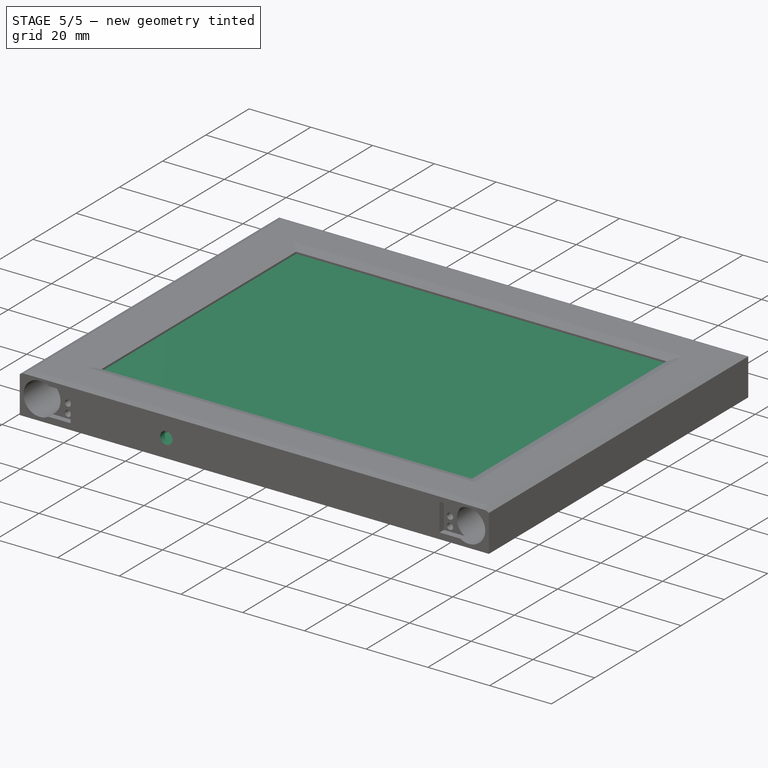
[diagram: stage 5 of 5 — iso view after this stage's code; geometry added in this stage tinted green]
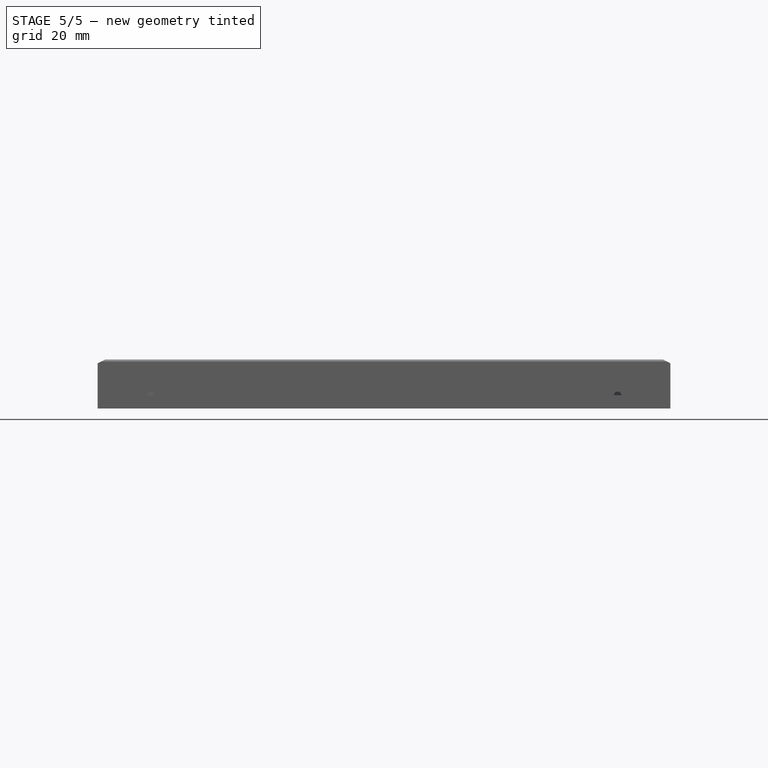
[diagram: stage 5 of 5 — front view after this stage's code; geometry added in this stage tinted green]
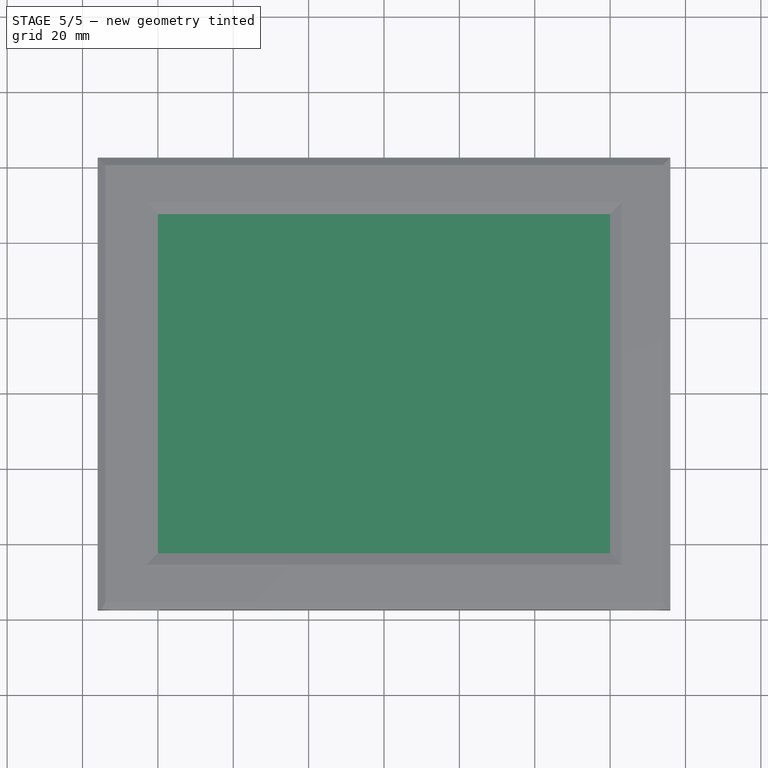
[diagram: stage 5 of 5 — top view after this stage's code; geometry added in this stage tinted green]
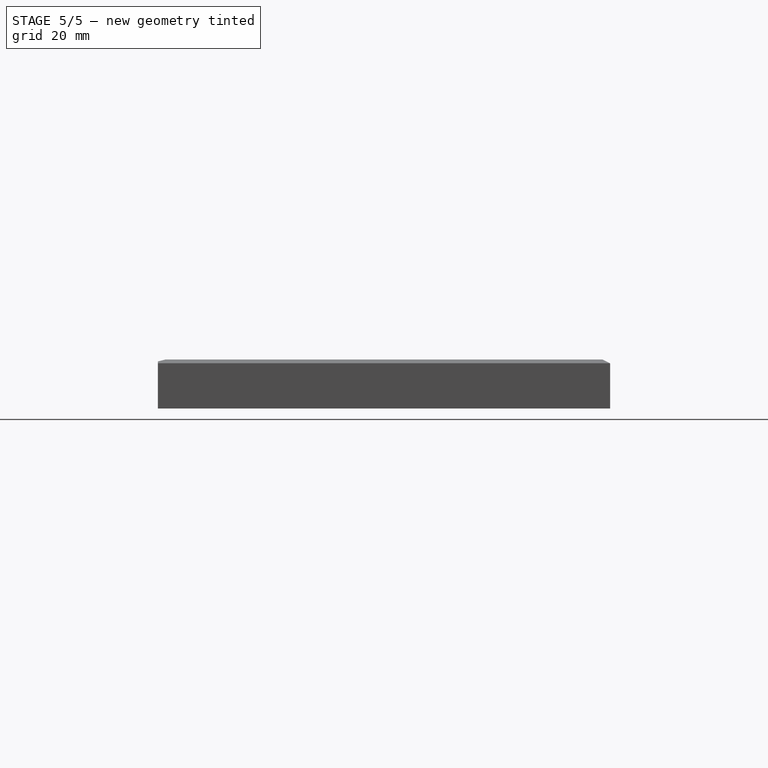
[diagram: stage 5 of 5 — right view after this stage's code; geometry added in this stage tinted green]
FEATURE [Sketcher::SketchObject] Sketch
  FullyConstrained = true
  sketch-geometry (4):
    g0: LineSegment StartX=-62.5 StartY=50 StartZ=0 EndX=62.5 EndY=50 EndZ=0
    g1: LineSegment StartX=62.5 StartY=50 StartZ=0 EndX=62.5 EndY=-50 EndZ=0
    g2: LineSegment StartX=62.5 StartY=-50 StartZ=0 EndX=-62.5 EndY=-50 EndZ=0
    g3: LineSegment StartX=-62.5 StartY=-50 StartZ=0 EndX=-62.5 EndY=50 EndZ=0
  constraints (10):
    c: Coincident(g0,g1)
    c: Coincident(g1,g2)
    c: Coincident(g2,g3)
    c: Coincident(g3,g0)
    c: Horizontal(g2)
    c: Vertical(g1)
    c: Symmetric(g2,g0,g-1)
    c: Symmetric(g0,g0,g-2)
    c: DistanceY(g1,g1) = 100
    c: DistanceX(g0,g0) = 125
FEATURE [PartDesign::Pad] Pad
  Direction = (1,1,1)
  Length = 1.5
  Length2 = 100
  Profile = -> Sketch
  Type = 0
FEATURE [Sketcher::SketchObject] Sketch001
  ExternalGeometry = -> [Pad]
  FullyConstrained = true
  MapMode = 5
  Placement = pos=(0,0,1.5) rot=(0,0,1;0rad)
  Support = -> [Pad]
  sketch-geometry (4):
    g0: LineSegment StartX=-60 StartY=47.5 StartZ=0 EndX=60 EndY=47.5 EndZ=0
    g1: LineSegment StartX=60 StartY=47.5 StartZ=0 EndX=60 EndY=-42.5 EndZ=0
    g2: LineSegment StartX=60 StartY=-42.5 StartZ=0 EndX=-60 EndY=-42.5 EndZ=0
    g3: LineSegment StartX=-60 StartY=-42.5 StartZ=0 EndX=-60 EndY=47.5 EndZ=0
  constraints (11):
    c: Coincident(g0,g1)
    c: Coincident(g1,g2)
    c: Coincident(g2,g3)
    c: Coincident(g3,g0)
    c: Horizontal(g2)
    c: Vertical(g1)
    c: Vertical(g3)
    c: DistanceX(g0,g0) = 120
    c: Symmetric(g0,g0,g-2)
    c: DistanceY(g1,g1) = 90
    c: DistanceY(g-3,g1) = 7.5
FEATURE [PartDesign::Pocket] Pocket
  BaseFeature = -> Pad
  Direction = (0,0,-1)
  Length = 0.1
  Length2 = 100
  Profile = -> Sketch001
  Type = 0
FEATURE [Sketcher::SketchObject] Sketch008
  FullyConstrained = true
  MapMode = 5
  Placement = pos=(0,0,-10) rot=(1,0,0;3.14159rad)
  sketch-geometry (44):
    g0: LineSegment StartX=-74 StartY=55.5 StartZ=0 EndX=73 EndY=55.5 EndZ=0
    g1: LineSegment StartX=73 StartY=-60.5 StartZ=0 EndX=-74 EndY=-60.5 EndZ=0
    g2: LineSegment StartX=73 StartY=55.5 StartZ=0 EndX=73 EndY=-60.5 EndZ=0
    g3: LineSegment StartX=-74 StartY=55.5 StartZ=0 EndX=-74 EndY=-60.5 EndZ=0
    g4: LineSegment StartX=-63.5 StartY=50 StartZ=0 EndX=63.5 EndY=50 EndZ=0
    g5: LineSegment StartX=63.5 StartY=50 StartZ=0 EndX=63.5 EndY=-50 EndZ=0
    g6: LineSegment StartX=63.5 StartY=-50 StartZ=0 EndX=-63.5 EndY=-50 EndZ=0
    g7: LineSegment StartX=-63.5 StartY=-50 StartZ=0 EndX=-63.5 EndY=50 EndZ=0
    g8: LineSegment StartX=-63.5 StartY=-50 StartZ=0 EndX=-63.5 EndY=-33 EndZ=0
    g9: LineSegment StartX=-63.5 StartY=-33 StartZ=0 EndX=-74 EndY=-33 EndZ=0
    g10: LineSegment StartX=-74 StartY=-33 StartZ=0 EndX=-74 EndY=-2.5 EndZ=0
    g11: LineSegment StartX=-74 StartY=-2.5 StartZ=0 EndX=-63.5 EndY=-2.5 EndZ=0
    g12: LineSegment StartX=-63.5 StartY=-2.5 StartZ=0 EndX=-63.5 EndY=50 EndZ=0
    g13: LineSegment StartX=-63.5 StartY=50 StartZ=0 EndX=-54.5 EndY=50 EndZ=0
    g14: LineSegment StartX=-54.5 StartY=50 StartZ=0 EndX=-54.5 EndY=55.5 EndZ=0
    g15: LineSegment StartX=-54.5 StartY=55.5 StartZ=0 EndX=-23.5 EndY=55.5 EndZ=0
    g16: LineSegment StartX=-23.5 StartY=55.5 StartZ=0 EndX=-23.5 EndY=50 EndZ=0
    g17: LineSegment StartX=-23.5 StartY=50 StartZ=0 EndX=-15.5 EndY=50 EndZ=0
    g18: LineSegment StartX=-15.5 StartY=50 StartZ=0 EndX=-15.5 EndY=55.5 EndZ=0
    g19: LineSegment StartX=-15.5 StartY=55.5 StartZ=0 EndX=15.5 EndY=55.5 EndZ=0
    g20: LineSegment StartX=15.5 StartY=55.5 StartZ=0 EndX=15.5 EndY=50 EndZ=0
    g21: LineSegment StartX=15.5 StartY=50 StartZ=0 EndX=23.5 EndY=50 EndZ=0
    g22: LineSegment StartX=23.5 StartY=50 StartZ=0 EndX=23.5 EndY=55.5 EndZ=0
    g23: LineSegment StartX=23.5 StartY=55.5 StartZ=0 EndX=54.5 EndY=55.5 EndZ=0
    g24: LineSegment StartX=54.5 StartY=55.5 StartZ=0 EndX=54.5 EndY=50 EndZ=0
    g25: LineSegment StartX=54.5 StartY=50 StartZ=0 EndX=63.5 EndY=50 EndZ=0
    g26: LineSegment StartX=63.5 StartY=50 StartZ=0 EndX=63.5 EndY=-2.5 EndZ=0
    g27: LineSegment StartX=63.5 StartY=-2.5 StartZ=0 EndX=73 EndY=-2.5 EndZ=0
    g28: LineSegment StartX=73 StartY=-2.5 StartZ=0 EndX=73 EndY=-42 EndZ=0
    g29: LineSegment StartX=73 StartY=-42 StartZ=0 EndX=63.5 EndY=-42 EndZ=0
    g30: LineSegment StartX=63.5 StartY=-42 StartZ=0 EndX=63.5 EndY=-50 EndZ=0
    g31: LineSegment StartX=23.5 StartY=-60.5 StartZ=0 EndX=23.5 EndY=-50 EndZ=0
    g32: LineSegment StartX=23.5 StartY=-50 StartZ=0 EndX=15.5 EndY=-50 EndZ=0
    g33: LineSegment StartX=15.5 StartY=-50 StartZ=0 EndX=15.5 EndY=-60.5 EndZ=0
    g34: LineSegment StartX=15.5 StartY=-60.5 StartZ=0 EndX=-15.5 EndY=-60.5 EndZ=0
    g35: LineSegment StartX=-15.5 StartY=-60.5 StartZ=0 EndX=-15.5 EndY=-50 EndZ=0
    g36: LineSegment StartX=-15.5 StartY=-50 StartZ=0 EndX=-23.5 EndY=-50 EndZ=0
    g37: LineSegment StartX=-23.5 StartY=-50 StartZ=0 EndX=-23.5 EndY=-60.5 EndZ=0
    g38: LineSegment StartX=63.5 StartY=-50 StartZ=0 EndX=54.5 EndY=-50 EndZ=0
    g39: LineSegment StartX=54.5 StartY=-50 StartZ=0 EndX=54.5 EndY=-60.5 EndZ=0
    g40: LineSegment StartX=54.5 StartY=-60.5 StartZ=0 EndX=23.5 EndY=-60.5 EndZ=0
    g41: LineSegment StartX=-63.5 StartY=-50 StartZ=0 EndX=-54.5 EndY=-50 EndZ=0
    g42: LineSegment StartX=-54.5 StartY=-50 StartZ=0 EndX=-54.5 EndY=-60.5 EndZ=0
    g43: LineSegment StartX=-23.5 StartY=-60.5 StartZ=0 EndX=-54.5 EndY=-60.5 EndZ=0
  constraints (130):
    c: Horizontal(g0)
    c: Horizontal(g1)
    c: DistanceX(g0,g0) = 147
    c: DistanceY(g1,g0) = 116
    c: Equal(g1,g0)
    c: Coincident(g2,g0)
    c: Coincident(g2,g1)
    c: Vertical(g2)
    c: Coincident(g3,g1)
    c: Coincident(g3,g0)
    c: Coincident(g4,g5)
    c: Coincident(g5,g6)
    c: Coincident(g6,g7)
    c: Coincident(g7,g4)
    c: Horizontal(g6)
    c: Vertical(g5)
    c: Vertical(g7)
    c: DistanceX(g4,g4) = 127
    c: DistanceY(g7,g7) = 100
    c: PointOnObject(g8,g7)
    c: Vertical(g8)
    c: Coincident(g8,g9)
    c: PointOnObject(g9,g3)
    c: Horizontal(g9)
    c: Coincident(g9,g10)
    c: PointOnObject(g10,g3)
    c: Coincident(g10,g11)
    c: PointOnObject(g11,g7)
    c: Horizontal(g11)
    c: Coincident(g11,g12)
    c: Coincident(g12,g4)
    c: Coincident(g12,g13)
    c: PointOnObject(g13,g4)
    c: Coincident(g13,g14)
    c: PointOnObject(g14,g0)
    c: Coincident(g14,g15)
    c: PointOnObject(g15,g0)
    c: Coincident(g15,g16)
    c: PointOnObject(g16,g4)
    c: Vertical(g16)
    c: Coincident(g16,g17)
    c: PointOnObject(g17,g4)
    c: Coincident(g17,g18)
    c: PointOnObject(g18,g0)
    c: Coincident(g18,g19)
    c: PointOnObject(g19,g0)
    c: Coincident(g19,g20)
    c: PointOnObject(g20,g4)
    c: Vertical(g20)
    c: Coincident(g20,g21)
    c: PointOnObject(g21,g4)
    c: Horizontal(g21)
    c: Coincident(g21,g22)
    c: PointOnObject(g22,g0)
    c: Coincident(g22,g23)
    c: PointOnObject(g23,g0)
    c: Coincident(g23,g24)
    c: PointOnObject(g24,g4)
    c: Vertical(g24)
    c: Coincident(g24,g25)
    c: Coincident(g25,g4)
    c: Coincident(g25,g26)
    c: PointOnObject(g26,g5)
    c: Coincident(g26,g27)
    c: PointOnObject(g27,g2)
    c: Horizontal(g27)
    c: Coincident(g27,g28)
    c: PointOnObject(g28,g2)
    c: Coincident(g28,g29)
    c: PointOnObject(g29,g5)
    c: Horizontal(g29)
    c: Coincident(g29,g30)
    c: Vertical(g30)
    c: PointOnObject(g31,g1)
    c: PointOnObject(g31,g6)
    c: Coincident(g31,g32)
    c: PointOnObject(g32,g6)
    c: Coincident(g32,g33)
    c: PointOnObject(g33,g1)
    c: Vertical(g33)
    c: Coincident(g33,g34)
    c: Coincident(g34,g35)
    c: PointOnObject(g35,g6)
    c: Coincident(g35,g36)
    c: PointOnObject(g36,g6)
    c: Coincident(g36,g37)
    c: PointOnObject(g37,g1)
    c: Vertical(g37)
    c: PointOnObject(g30,g6)
    c: Coincident(g30,g38)
    c: PointOnObject(g38,g6)
    c: Coincident(g38,g39)
    c: PointOnObject(g39,g1)
    c: Vertical(g39)
    c: Coincident(g39,g40)
    c: Coincident(g40,g31)
    c: Vertical(g31)
    c: DistanceX(g32,g32) = 8
    c: Equal(g32,g36)
    c: Vertical(g35)
    c: PointOnObject(g8,g6)
    c: Coincident(g41,g8)
    c: PointOnObject(g41,g6)
    c: Coincident(g42,g41)
    c: PointOnObject(g42,g1)
    c: Vertical(g42)
    c: Coincident(g43,g37)
    c: Coincident(g43,g42)
    c: Vertical(g14)
    c: Vertical(g18)
    c: Vertical(g22)
    c: Equal(g12,g26)
    c: Distance(g10) = 30.5
    c: DistanceX(g41,g41) = 9
    c: DistanceX(g13,g13) = 9
    c: DistanceY(g0) = 55.5
    c: DistanceX(g1) = 73
    c: DistanceX(g0,g12) = 10.5
    c: DistanceY(g12,g0) = 5.5
    c: DistanceX(g17,g17) = 8
    c: DistanceX(g21,g21) = 8
    c: PointOnObject(g34,g1)
    c: DistanceX(g32) = 15.5
    c: DistanceY(g8,g8) = 17
    c: DistanceX(g17) = -15.5
    c: DistanceX(g20) = 15.5
    c: DistanceX(g35) = -15.5
    c: DistanceX(g24) = 54.5
    c: DistanceY(g30,g30) = 8
    c: DistanceX(g38) = 54.5
FEATURE [Sketcher::SketchObject] Sketch009
  ExternalGeometry = -> [Sketch007]
  FullyConstrained = false
  MapMode = 5
  Placement = pos=(0,0,-6.5) rot=(1,0,0;3.14159rad)
  Support = -> [Pad003]
  sketch-geometry (37):
    g0: LineSegment StartX=-25 StartY=-2.5 StartZ=0 EndX=-13 EndY=25 EndZ=0
    g1: LineSegment StartX=-13 StartY=25 StartZ=0 EndX=-13 EndY=-35 EndZ=0
    g2: LineSegment StartX=-13 StartY=-35 StartZ=0 EndX=-30 EndY=-48 EndZ=0
    g3: LineSegment StartX=-30 StartY=-48 StartZ=0 EndX=-30 EndY=-2.5 EndZ=0
    g4: LineSegment StartX=-30 StartY=-2.5 StartZ=0 EndX=-25 EndY=-2.5 EndZ=0
    g5: LineSegment StartX=64 StartY=50 StartZ=0 EndX=56 EndY=36.1436 EndZ=0
    g6: LineSegment StartX=50 StartY=36.1436 StartZ=0 EndX=58 EndY=50 EndZ=0
    g7: LineSegment StartX=58 StartY=50 StartZ=0 EndX=64 EndY=50 EndZ=0
    g8: LineSegment StartX=62.5 StartY=5.5 StartZ=0 EndX=62.5 EndY=1.5 EndZ=0
    g9: LineSegment StartX=62.5 StartY=1.5 StartZ=0 EndX=47 EndY=5.65321 EndZ=0
    g10: LineSegment StartX=-63.75 StartY=50 StartZ=0 EndX=-55.75 EndY=36.1436 EndZ=0
    g11: LineSegment StartX=-55.75 StartY=36.1436 StartZ=0 EndX=-49.75 EndY=36.1436 EndZ=0
    g12: LineSegment StartX=-49.75 StartY=36.1436 StartZ=0 EndX=-57.75 EndY=50 EndZ=0
    g13: LineSegment StartX=-57.75 StartY=50 StartZ=0 EndX=-63.75 EndY=50 EndZ=0
    g14: LineSegment StartX=47 StartY=10.6532 StartZ=0 EndX=0 EndY=10.6532 EndZ=0
    g15: LineSegment StartX=0 StartY=10.6532 StartZ=0 EndX=0 EndY=5.65321 EndZ=0
    g16: LineSegment StartX=0 StartY=5.65321 StartZ=0 EndX=47 EndY=5.65321 EndZ=0
    g17: LineSegment StartX=-43.5 StartY=40 StartZ=0 EndX=-43.5 EndY=-8.5 EndZ=0
    g18: LineSegment StartX=-43.5 StartY=-8.5 StartZ=0 EndX=-47.5 EndY=-8.5 EndZ=0
    g19: LineSegment StartX=-47.5 StartY=-8.5 StartZ=0 EndX=-47.5 EndY=1.5 EndZ=0
    g20: LineSegment StartX=-47.5 StartY=1.5 StartZ=0 EndX=-62.5 EndY=1.5 EndZ=0
    g21: LineSegment StartX=-62.5 StartY=1.5 StartZ=0 EndX=-62.5 EndY=5.5 EndZ=0
    g22: LineSegment StartX=-62.5 StartY=5.5 StartZ=0 EndX=-47.5 EndY=5.5 EndZ=0
    g23: LineSegment StartX=-47.5 StartY=5.5 StartZ=0 EndX=-47.5 EndY=40 EndZ=0
    g24: LineSegment StartX=-47.5 StartY=40 StartZ=0 EndX=-43.5 EndY=40 EndZ=0
    g25: LineSegment StartX=62.5 StartY=5.5 StartZ=0 EndX=56 EndY=7.24167 EndZ=0
    g26: LineSegment StartX=56 StartY=36.1436 StartZ=0 EndX=56 EndY=7.24167 EndZ=0
    g27: LineSegment StartX=50 StartY=36.1436 StartZ=0 EndX=50 EndY=9.84936 EndZ=0
    g28: LineSegment StartX=50 StartY=9.84936 StartZ=0 EndX=47 EndY=10.6532 EndZ=0
    g29: LineSegment StartX=-42 StartY=35 StartZ=0 EndX=0 EndY=35 EndZ=0
    g30: LineSegment StartX=0 StartY=35 StartZ=0 EndX=0 EndY=30 EndZ=0
    g31: LineSegment StartX=0 StartY=30 StartZ=0 EndX=-42 EndY=30 EndZ=0
    g32: LineSegment StartX=-42 StartY=30 StartZ=0 EndX=-42 EndY=35 EndZ=0
    g33: LineSegment StartX=-30.5 StartY=55 StartZ=0 EndX=-27.5 EndY=55 EndZ=0
    g34: LineSegment StartX=-27.5 StartY=55 StartZ=0 EndX=-27.5 EndY=37 EndZ=0
    g35: LineSegment StartX=-27.5 StartY=37 StartZ=0 EndX=-30.5 EndY=37 EndZ=0
    g36: LineSegment StartX=-30.5 StartY=37 StartZ=0 EndX=-30.5 EndY=55 EndZ=0
  constraints (106):
    c: Coincident(g-4,g0)
    c: Coincident(g0,g1)
    c: Coincident(g1,g2)
    c: Coincident(g2,g-3)
    c: Coincident(g2,g3)
    c: Vertical(g3)
    c: Coincident(g3,g4)
    c: Coincident(g4,g0)
    c: Horizontal(g4)
    c: DistanceY(g1,g0) = 60
    c: Coincident(g6,g7)
    c: Coincident(g7,g5)
    c: Horizontal(g7)
    c: DistanceX(g5) = 64
    c: DistanceY(g5) = 50
    c: DistanceX(g7,g7) = 6
    c: Parallel(g6,g5)
    c: Coincident(g8,g9)
    c: Vertical(g8)
    c: DistanceX(g8) = 62.5
    c: DistanceY(g8) = 1.5
    c: DistanceY(g8,g8) = 4
    c: DistanceX(g6,g6) = 8
    c: Coincident(g10,g11)
    c: Coincident(g11,g12)
    c: Coincident(g12,g13)
    c: Coincident(g13,g10)
    c: Horizontal(g13)
    c: DistanceX(g10) = -63.75
    c: DistanceY(g10) = 50
    c: DistanceX(g13,g13) = 6
    c: DistanceX(g12,g11) = 8
    c: Parallel(g10,g12)
    c: Horizontal(g11)
    c: Angle(g10,g13) = 1.0472
    c: Angle(g7,g5) = 1.0472
    c: Angle(g9,g-1) = 0.261799
    c: PointOnObject(g14,g-2)
    c: Horizontal(g14)
    c: Coincident(g14,g15)
    c: PointOnObject(g15,g-2)
    c: Coincident(g15,g16)
    c: Coincident(g16,g9)
    c: Horizontal(g16)
    c: DistanceY(g15,g15) = 5
    c: DistanceX(g15,g9) = 47
    c: Vertical(g17)
    c: Coincident(g17,g18)
    c: Horizontal(g18)
    c: Coincident(g18,g19)
    c: Vertical(g19)
    c: Coincident(g19,g20)
    c: Coincident(g20,g21)
    c: Vertical(g21)
    c: Horizontal(g20)
    c: DistanceX(g20) = -62.5
    c: DistanceY(g20) = 1.5
    c: DistanceX(g18,g18) = 4
    c: DistanceX(g20,g20) = 15
    c: DistanceY(g19,g19) = 10
    c: DistanceY(g21,g21) = 4
    c: Coincident(g22,g21)
    c: Horizontal(g22)
    c: Coincident(g23,g22)
    c: Vertical(g23)
    c: Coincident(g24,g23)
    c: Horizontal(g24)
    c: Coincident(g24,g17)
    c: DistanceX(g19,g22) = 0
    c: DistanceY(g-1,g17) = 40
    c: Coincident(g25,g8)
    c: Parallel(g9,g25)
    c: Coincident(g5,g26)
    c: Coincident(g26,g25)
    c: Coincident(g6,g27)
    c: Coincident(g27,g28)
    c: Coincident(g28,g14)
    c: Parallel(g27,g26)
    c: Parallel(g25,g28)
    c: DistanceX(g9,g14) = 0
    c: DistanceY(g6,g5) = 0
    c: Vertical(g27)
    c: Coincident(g29,g30)
    c: Coincident(g30,g31)
    c: Coincident(g31,g32)
    c: Coincident(g32,g29)
    c: Horizontal(g29)
    c: Horizontal(g31)
    c: Vertical(g30)
    c: Vertical(g32)
    c: DistanceY(g32,g32) = 5
    c: PointOnObject(g29,g-2)
    c: DistanceY(g29,g17) = 5
    c: DistanceX(g29,g29) = 42
    c: Coincident(g33,g34)
    c: Coincident(g34,g35)
    c: Coincident(g35,g36)
    c: Coincident(g36,g33)
    c: Horizontal(g33)
    c: Horizontal(g35)
    c: Vertical(g34)
    c: Vertical(g36)
    c: DistanceY(g29,g34) = 2
    c: DistanceX(g35,g35) = 3
    c: DistanceX(g33) = -27.5
    c: DistanceY(g36,g36) = 18
FEATURE [PartDesign::Pad] Pad004
  Direction = (0,0,-1)
  Length = 3
  Length2 = 100
  Placement = pos=(0,0,-10) rot=(1,0,0;3.14159rad)
  Profile = -> Sketch008
  ReferenceAxis = -> Sketch008 [N_Axis]
  Reversed = true
  Type = 0
FEATURE [Sketcher::SketchObject] Sketch018  label="SketchSwitchHole"
  FullyConstrained = true
  MapMode = 5
  Placement = pos=(0,-57.5,0) rot=(1,0,0;1.5708rad)
  Support = -> [Pocket014]
  sketch-geometry (1):
    g0: Circle CenterX=-28.5 CenterY=-4 CenterZ=0 NormalX=0 NormalY=0 NormalZ=1 AngleXU=0 Radius=2
  constraints (3):
    c: DistanceX(g0) = -28.5
    c: Radius(g0) = 2
    c: DistanceY(g0) = -4
FEATURE [PartDesign::Pocket] Pocket015  label="SwitchHole"
  BaseFeature = -> Pocket014
  Direction = (0,1,-2e-16)
  Length = 10
  Length2 = 5
  Profile = -> Sketch018
  ReferenceAxis = -> Sketch018 [N_Axis]
  Type = 0
FEATURE [PartDesign::Chamfer] Chamfer005  label="ChamferScreenFlatCable"
  Angle = 45
  Base = -> Pocket015 [Edge235]
  BaseFeature = -> Pocket015
  ChamferType = 1
  FlipDirection = false
  Size = 1.9
  Size2 = 3
  SupportTransform = false
  UseAllEdges = false
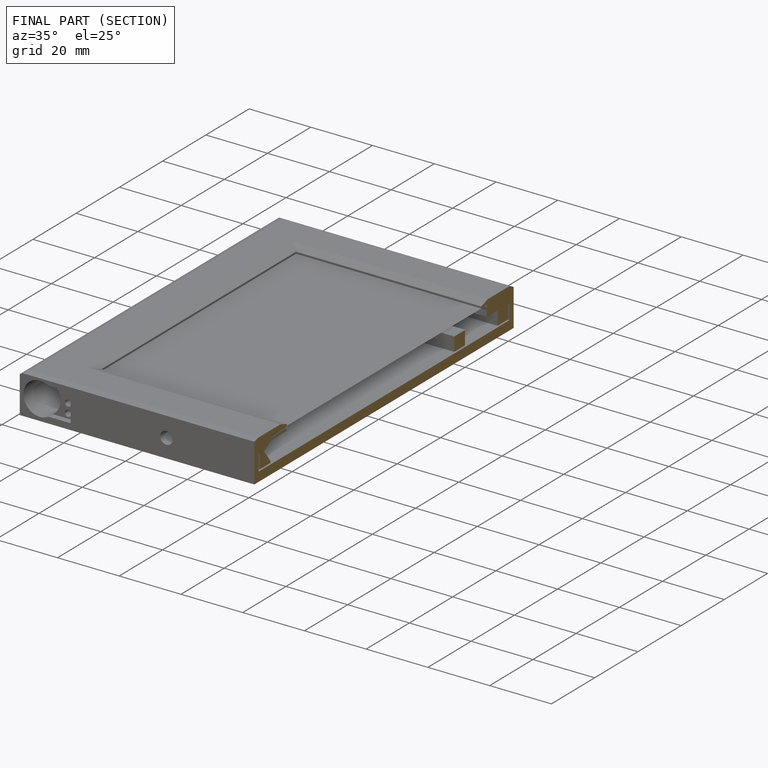
[diagram: finished part — half-section view (interior)]
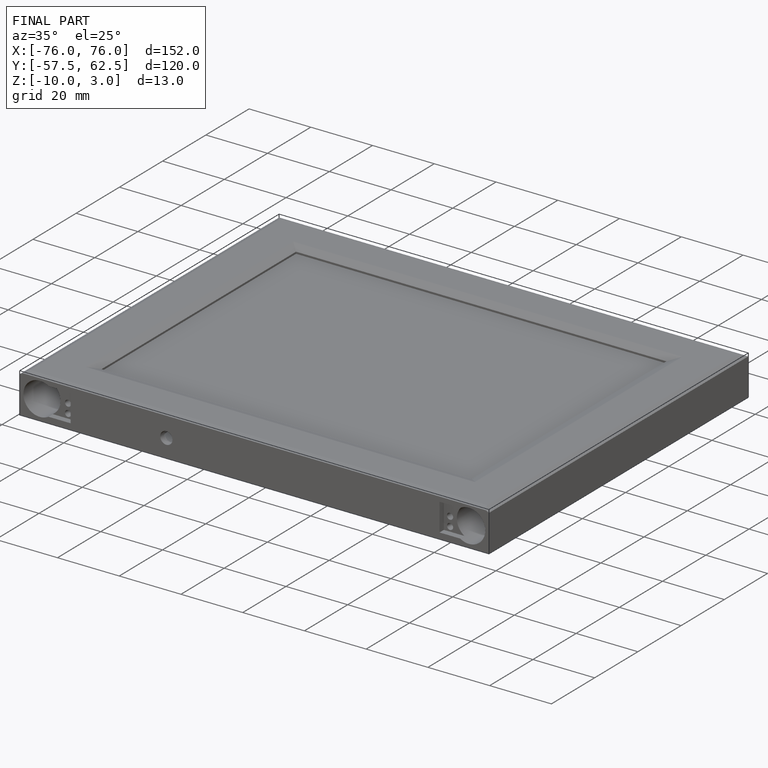
[diagram: finished part — iso view with bounding-box wireframe]
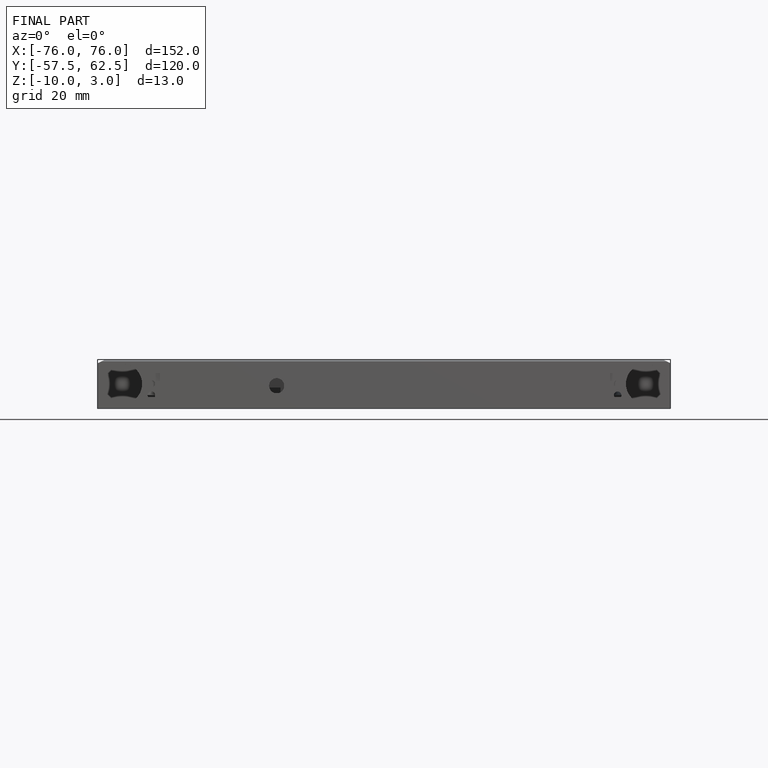
[diagram: finished part — front view with bounding-box wireframe]
